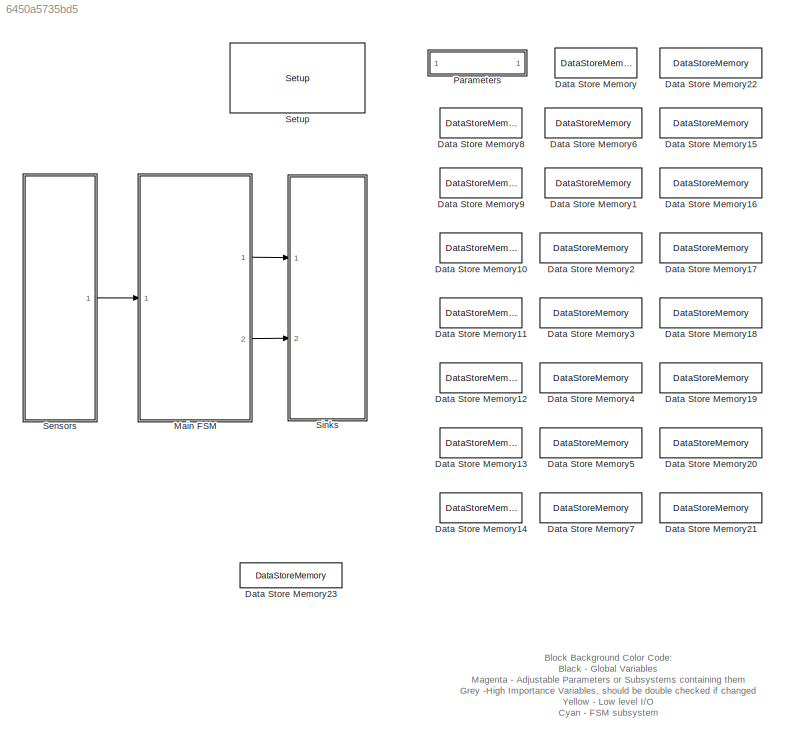
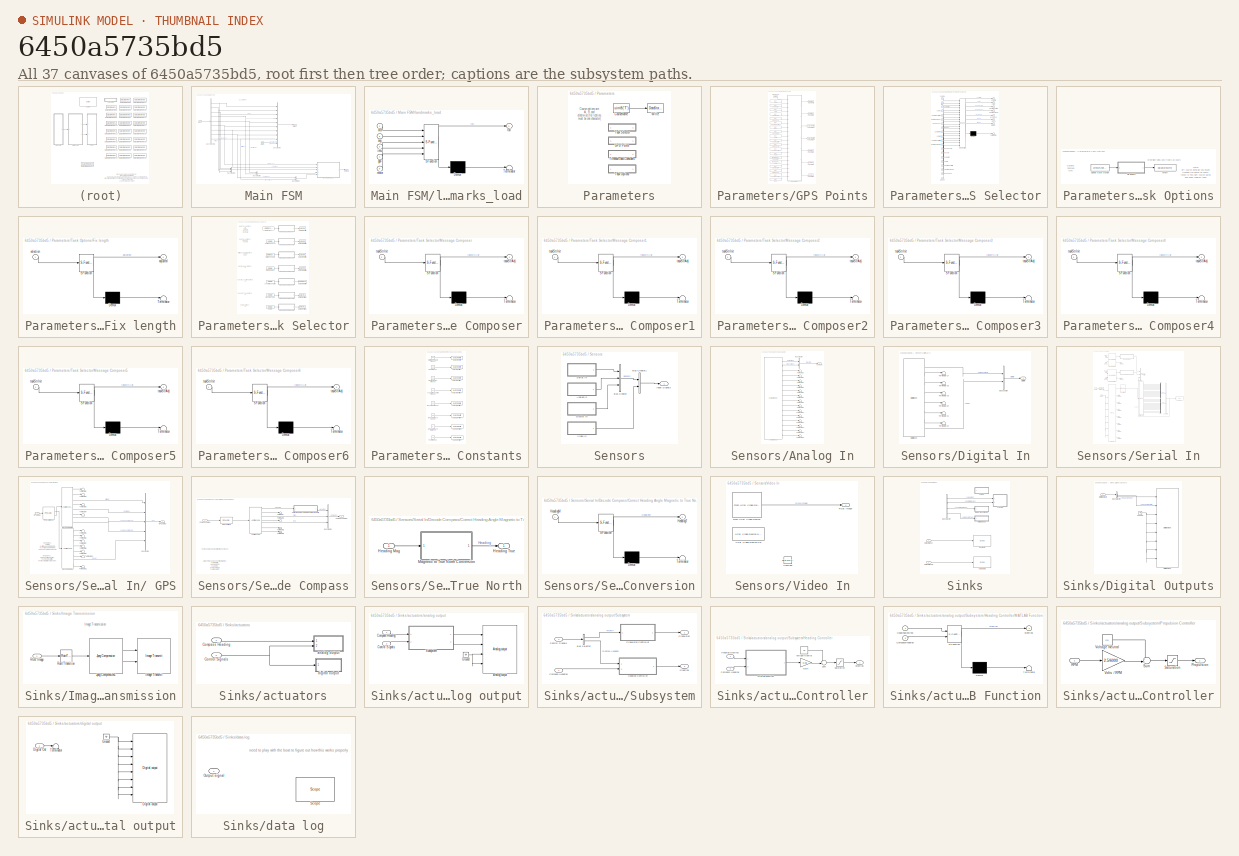
[diagram: thumbnail index - all 37 canvases of the model, root first then tree order]
MODEL slx_6450a5735bd5
KIND model
BLOCK [DataStoreMemory] Data Store Memory
  DataStoreName = Course
  ReadBeforeWriteMsg = warning
  WriteAfterReadMsg = warning
  WriteAfterWriteMsg = warning
BLOCK [DataStoreMemory] Data Store Memory1
  DataStoreName = colorTask
  InitialValue = zeros(1,8)
  ReadBeforeWriteMsg = warning
  WriteAfterReadMsg = warning
  WriteAfterWriteMsg = warning
BLOCK [DataStoreMemory] Data Store Memory10
  DataStoreName = obstNavStartGPS
  InitialValue = zeros(1,2)
  ReadBeforeWriteMsg = warning
  WriteAfterReadMsg = warning
  WriteAfterWriteMsg = warning
BLOCK [DataStoreMemory] Data Store Memory11
  DataStoreName = obstNavEndGPS
  InitialValue = zeros(1,2)
  ReadBeforeWriteMsg = warning
  WriteAfterReadMsg = warning
  WriteAfterWriteMsg = warning
BLOCK [DataStoreMemory] Data Store Memory12
  DataStoreName = acouLocGPS
  InitialValue = zeros(1,2)
  ReadBeforeWriteMsg = warning
  WriteAfterReadMsg = warning
  WriteAfterWriteMsg = warning
BLOCK [DataStoreMemory] Data Store Memory13
  DataStoreName = dockGPS
  InitialValue = zeros(1,2)
  ReadBeforeWriteMsg = warning
  WriteAfterReadMsg = warning
  WriteAfterWriteMsg = warning
BLOCK [DataStoreMemory] Data Store Memory14
  DataStoreName = returnGPS
  InitialValue = zeros(1,2)
  ReadBeforeWriteMsg = warning
  WriteAfterReadMsg = warning
  WriteAfterWriteMsg = warning
BLOCK [DataStoreMemory] Data Store Memory15
  DataStoreName = ssGateTimeout
  ReadBeforeWriteMsg = warning
  WriteAfterReadMsg = warning
  WriteAfterWriteMsg = warning
BLOCK [DataStoreMemory] Data Store Memory16
  DataStoreName = colorTimeout
  ReadBeforeWriteMsg = warning
  WriteAfterReadMsg = warning
  WriteAfterWriteMsg = warning
BLOCK [DataStoreMemory] Data Store Memory17
  DataStoreName = obstNavTimeout
  ReadBeforeWriteMsg = warning
  WriteAfterReadMsg = warning
  WriteAfterWriteMsg = warning
BLOCK [DataStoreMemory] Data Store Memory18
  DataStoreName = acouLocTimeout
  ReadBeforeWriteMsg = warning
  WriteAfterReadMsg = warning
  WriteAfterWriteMsg = warning
BLOCK [DataStoreMemory] Data Store Memory19
  DataStoreName = dockTimeout
  ReadBeforeWriteMsg = warning
  WriteAfterReadMsg = warning
  WriteAfterWriteMsg = warning
BLOCK [DataStoreMemory] Data Store Memory2
  DataStoreName = ssGateTask
  InitialValue = zeros(1,8)
  ReadBeforeWriteMsg = warning
  WriteAfterReadMsg = warning
  WriteAfterWriteMsg = warning
BLOCK [DataStoreMemory] Data Store Memory20
  DataStoreName = GPSapproachSpeed
  ReadBeforeWriteMsg = warning
  WriteAfterReadMsg = warning
  WriteAfterWriteMsg = warning
BLOCK [DataStoreMemory] Data Store Memory21
  DataStoreName = GPSapproachDist
  ReadBeforeWriteMsg = warning
  WriteAfterReadMsg = warning
  WriteAfterWriteMsg = warning
BLOCK [DataStoreMemory] Data Store Memory22
  DataStoreName = testTimeout
  ReadBeforeWriteMsg = warning
  WriteAfterReadMsg = warning
  WriteAfterWriteMsg = warning
BLOCK [DataStoreMemory] Data Store Memory23
  DataStoreName = SpeedGateOption
  InitialValue = zeros(1,8)
  ReadBeforeWriteMsg = warning
  WriteAfterReadMsg = warning
  WriteAfterWriteMsg = warning
BLOCK [DataStoreMemory] Data Store Memory3
  DataStoreName = obstNavTask
  InitialValue = zeros(1,8)
  ReadBeforeWriteMsg = warning
  WriteAfterReadMsg = warning
  WriteAfterWriteMsg = warning
BLOCK [DataStoreMemory] Data Store Memory4
  DataStoreName = acouLocTask
  InitialValue = zeros(1,8)
  ReadBeforeWriteMsg = warning
  WriteAfterReadMsg = warning
  WriteAfterWriteMsg = warning
BLOCK [DataStoreMemory] Data Store Memory5
  DataStoreName = dockTask
  InitialValue = zeros(1,8)
  ReadBeforeWriteMsg = warning
  WriteAfterReadMsg = warning
  WriteAfterWriteMsg = warning
BLOCK [DataStoreMemory] Data Store Memory6
  DataStoreName = mainTask
  InitialValue = zeros(1,8)
  ReadBeforeWriteMsg = warning
  WriteAfterReadMsg = warning
  WriteAfterWriteMsg = warning
BLOCK [DataStoreMemory] Data Store Memory7
  DataStoreName = Return
  InitialValue = zeros(1,8)
  ReadBeforeWriteMsg = warning
  WriteAfterReadMsg = warning
  WriteAfterWriteMsg = warning
BLOCK [DataStoreMemory] Data Store Memory8
  DataStoreName = ssGateGPS
  InitialValue = zeros(1,2)
  ReadBeforeWriteMsg = warning
  WriteAfterReadMsg = warning
  WriteAfterWriteMsg = warning
BLOCK [DataStoreMemory] Data Store Memory9
  DataStoreName = colorGPS
  InitialValue = zeros(1,2)
  ReadBeforeWriteMsg = warning
  WriteAfterReadMsg = warning
  WriteAfterWriteMsg = warning
BLOCK [SubSystem] Main FSM
  Ports = [1, 2]
  RequestExecContextInheritance = off
BLOCK [BusCreator] Main FSM/Bus Creator
  DisplayOption = bar
  Inputs = 10
  Ports = [10, 1]
BLOCK [BusCreator] Main FSM/Bus Creator1
  DisplayOption = bar
  Inputs = 3
  Ports = [3, 1]
BLOCK [BusCreator] Main FSM/Bus Creator2
  DisplayOption = bar
  Inputs = 2
  Ports = [2, 1]
BLOCK [BusCreator] Main FSM/Bus Creator3
  DisplayOption = bar
  Inputs = 2
  Ports = [2, 1]
BLOCK [BusSelector] Main FSM/Bus Selector2
  OutputSignals = Sensors.Serial In.Compass.Heading,Sensors.Serial In.Compass.Pitch,Sensors.Serial In.Compass.Roll,Sensors.Serial In.GPS.latitude,Sensors.Serial In.GPS.longitude,Sensors.Serial In.Landmarks.Distances,Sensors.Serial In.Landmarks.Angles,Sensors.thrusters.port voltage,Sensors.thrusters.stbd voltage
  Ports = [1, 9]
BLOCK [Clock] Main FSM/Clock
BLOCK [Inport] Main FSM/Input
  IconDisplay = Port number
BLOCK [Outport] Main FSM/Output
  IconDisplay = Port number
BLOCK [Outport] Main FSM/Output1
  IconDisplay = Port number
  Port = 2
BLOCK [SubSystem] Main FSM/landmarks_load
  ErrorFcn = Stateflow.Translate.translate
  PermitHierarchicalResolution = ExplicitOnly
  Ports = [5, 1]
  RequestExecContextInheritance = off
  SFBlockType = MATLAB Function
  TreatAsAtomicUnit = on
BLOCK [Demux] Main FSM/landmarks_load/ Demux 
  Outputs = 1
  Ports = [1, 1]
BLOCK [S-Function] Main FSM/landmarks_load/ SFunction 
  EnableBusSupport = on
  FunctionName = sf_sfun
  PortCounts = [5 2]
  Ports = [5, 2]
  Tag = Stateflow S-Function SLAMtester 7
BLOCK [Terminator] Main FSM/landmarks_load/ Terminator 
BLOCK [Inport] Main FSM/landmarks_load/ang
  IconDisplay = Port number
  Port = 2
BLOCK [Inport] Main FSM/landmarks_load/dist
  IconDisplay = Port number
BLOCK [Inport] Main FSM/landmarks_load/gps
  IconDisplay = Port number
  Port = 4
BLOCK [Inport] Main FSM/landmarks_load/imu
  IconDisplay = Port number
  Port = 3
BLOCK [Inport] Main FSM/landmarks_load/motor
  IconDisplay = Port number
  Port = 5
BLOCK [Outport] Main FSM/landmarks_load/roll
  IconDisplay = Port number
BLOCK [SubSystem] Parameters
  Ports = []
  RequestExecContextInheritance = off
BLOCK [Constant] Parameters/CourseName
  Value = uint8('T')
  VectorParams1D = off
BLOCK [SubSystem] Parameters/GPS Points
  Ports = []
  RequestExecContextInheritance = off
BLOCK [Constant] Parameters/GPS Points/Acoustic Location A
  SampleTime = 0.1
  Value = [1,1]
BLOCK [Constant] Parameters/GPS Points/Acoustic Location B
  SampleTime = 0.1
  Value = [1,1]
BLOCK [Constant] Parameters/GPS Points/Acoustic Location T
  SampleTime = 0.1
  Value = [1,1]
BLOCK [Constant] Parameters/GPS Points/Color A
  SampleTime = 0.1
  Value = [1,1]
BLOCK [Constant] Parameters/GPS Points/Color B
  SampleTime = 0.1
  Value = [1,1]
BLOCK [Constant] Parameters/GPS Points/Color T
  SampleTime = 0.1
  Value = [4009.4942 7532.9490]
BLOCK [DataStoreRead] Parameters/GPS Points/Data Store Read
  DataStoreName = Course
  DialogController = Simulink.DDGSource
  Ports = [0, 1]
  SampleTime = 0.1
BLOCK [DataStoreWrite] Parameters/GPS Points/Data Store Write
  DataStoreName = ssGateGPS
  DialogController = Simulink.DDGSource
  Ports = [1]
BLOCK [DataStoreWrite] Parameters/GPS Points/Data Store Write1
  DataStoreName = colorGPS
  Ports = [1]
BLOCK [DataStoreWrite] Parameters/GPS Points/Data Store Write2
  DataStoreName = obstNavStartGPS
  Ports = [1]
BLOCK [DataStoreWrite] Parameters/GPS Points/Data Store Write3
  DataStoreName = obstNavEndGPS
  Ports = [1]
BLOCK [DataStoreWrite] Parameters/GPS Points/Data Store Write4
  DataStoreName = acouLocGPS
  Ports = [1]
BLOCK [DataStoreWrite] Parameters/GPS Points/Data Store Write5
  DataStoreName = dockGPS
  Ports = [1]
BLOCK [DataStoreWrite] Parameters/GPS Points/Data Store Write6
  DataStoreName = returnGPS
  Ports = [1]
BLOCK [Constant] Parameters/GPS Points/Dock A
  SampleTime = 0.1
  Value = [1,1]
BLOCK [Constant] Parameters/GPS Points/Dock B
  SampleTime = 0.1
  Value = [1,1]
BLOCK [Constant] Parameters/GPS Points/Dock T
  SampleTime = 0.1
  Value = [1,1]
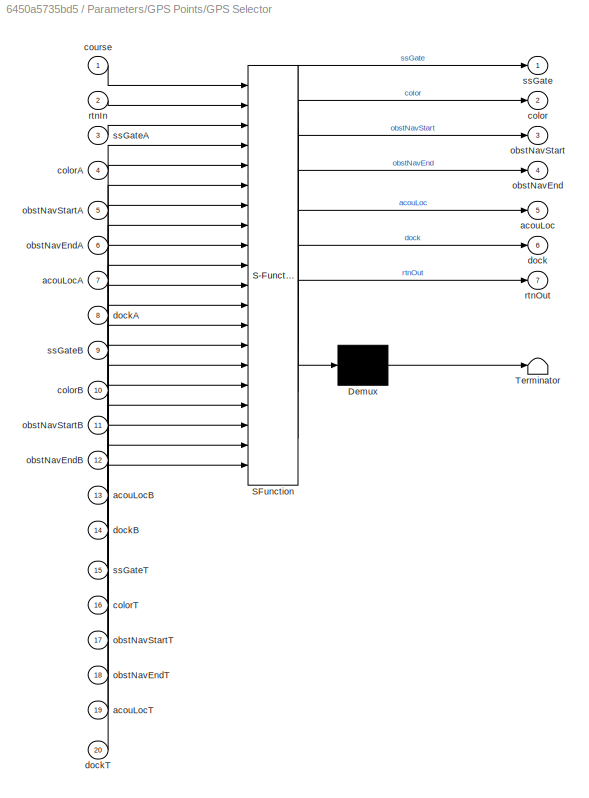
BLOCK [SubSystem] Parameters/GPS Points/GPS Selector
  ErrorFcn = Stateflow.Translate.translate
  PermitHierarchicalResolution = ExplicitOnly
  Ports = [20, 7]
  RequestExecContextInheritance = off
  SFBlockType = MATLAB Function
  TreatAsAtomicUnit = on
BLOCK [Demux] Parameters/GPS Points/GPS Selector/ Demux 
  Outputs = 1
  Ports = [1, 1]
BLOCK [S-Function] Parameters/GPS Points/GPS Selector/ SFunction 
  EnableBusSupport = on
  FunctionName = sf_sfun
  PortCounts = [20 8]
  Ports = [20, 8]
  Tag = Stateflow S-Function SLAMtester 54
BLOCK [Terminator] Parameters/GPS Points/GPS Selector/ Terminator 
BLOCK [Outport] Parameters/GPS Points/GPS Selector/acouLoc
  IconDisplay = Port number
  Port = 5
BLOCK [Inport] Parameters/GPS Points/GPS Selector/acouLocA
  IconDisplay = Port number
  Port = 7
BLOCK [Inport] Parameters/GPS Points/GPS Selector/acouLocB
  IconDisplay = Port number
  Port = 13
BLOCK [Inport] Parameters/GPS Points/GPS Selector/acouLocT
  IconDisplay = Port number
  Port = 19
BLOCK [Outport] Parameters/GPS Points/GPS Selector/color
  IconDisplay = Port number
  Port = 2
BLOCK [Inport] Parameters/GPS Points/GPS Selector/colorA
  IconDisplay = Port number
  Port = 4
BLOCK [Inport] Parameters/GPS Points/GPS Selector/colorB
  IconDisplay = Port number
  Port = 10
BLOCK [Inport] Parameters/GPS Points/GPS Selector/colorT
  IconDisplay = Port number
  Port = 16
BLOCK [Inport] Parameters/GPS Points/GPS Selector/course
  IconDisplay = Port number
BLOCK [Outport] Parameters/GPS Points/GPS Selector/dock
  IconDisplay = Port number
  Port = 6
BLOCK [Inport] Parameters/GPS Points/GPS Selector/dockA
  IconDisplay = Port number
  Port = 8
BLOCK [Inport] Parameters/GPS Points/GPS Selector/dockB
  IconDisplay = Port number
  Port = 14
BLOCK [Inport] Parameters/GPS Points/GPS Selector/dockT
  IconDisplay = Port number
  Port = 20
BLOCK [Outport] Parameters/GPS Points/GPS Selector/obstNavEnd
  IconDisplay = Port number
  Port = 4
BLOCK [Inport] Parameters/GPS Points/GPS Selector/obstNavEndA
  IconDisplay = Port number
  Port = 6
BLOCK [Inport] Parameters/GPS Points/GPS Selector/obstNavEndB
  IconDisplay = Port number
  Port = 12
BLOCK [Inport] Parameters/GPS Points/GPS Selector/obstNavEndT
  IconDisplay = Port number
  Port = 18
BLOCK [Outport] Parameters/GPS Points/GPS Selector/obstNavStart
  IconDisplay = Port number
  Port = 3
BLOCK [Inport] Parameters/GPS Points/GPS Selector/obstNavStartA
  IconDisplay = Port number
  Port = 5
BLOCK [Inport] Parameters/GPS Points/GPS Selector/obstNavStartB
  IconDisplay = Port number
  Port = 11
BLOCK [Inport] Parameters/GPS Points/GPS Selector/obstNavStartT
  IconDisplay = Port number
  Port = 17
BLOCK [Inport] Parameters/GPS Points/GPS Selector/rtnIn
  IconDisplay = Port number
  Port = 2
BLOCK [Outport] Parameters/GPS Points/GPS Selector/rtnOut
  IconDisplay = Port number
  Port = 7
BLOCK [Outport] Parameters/GPS Points/GPS Selector/ssGate
  IconDisplay = Port number
BLOCK [Inport] Parameters/GPS Points/GPS Selector/ssGateA
  IconDisplay = Port number
  Port = 3
BLOCK [Inport] Parameters/GPS Points/GPS Selector/ssGateB
  IconDisplay = Port number
  Port = 9
BLOCK [Inport] Parameters/GPS Points/GPS Selector/ssGateT
  IconDisplay = Port number
  Port = 15
BLOCK [Constant] Parameters/GPS Points/Obst Nav End A
  SampleTime = 0.1
  Value = [1,1]
BLOCK [Constant] Parameters/GPS Points/Obst Nav End B
  SampleTime = 0.1
  Value = [1,1]
BLOCK [Constant] Parameters/GPS Points/Obst Nav End T
  SampleTime = 0.1
  Value = [1,1]
BLOCK [Constant] Parameters/GPS Points/Obst Nav Start A
  SampleTime = 0.1
  Value = [1,1]
BLOCK [Constant] Parameters/GPS Points/Obst Nav Start B
  SampleTime = 0.1
  Value = [1,1]
BLOCK [Constant] Parameters/GPS Points/Obst Nav Start T
  SampleTime = 0.1
  Value = [1,1]
BLOCK [Constant] Parameters/GPS Points/Return
  SampleTime = 0.1
  Value = [1,1]
BLOCK [Constant] Parameters/GPS Points/SpeedGate A
  SampleTime = 0.1
  Value = [1,1]
BLOCK [Constant] Parameters/GPS Points/SpeedGate B
  SampleTime = 0.1
  Value = [1,1]
BLOCK [Constant] Parameters/GPS Points/SpeedGate T
  SampleTime = 0.1
  Value = [4009.5023 7532.9450]
BLOCK [SubSystem] Parameters/Task Options
  Ports = []
  RequestExecContextInheritance = off
BLOCK [SubSystem] Parameters/Task Options/Fix length
  ErrorFcn = Stateflow.Translate.translate
  PermitHierarchicalResolution = ExplicitOnly
  Ports = [1, 1]
  RequestExecContextInheritance = off
  SFBlockType = MATLAB Function
  TreatAsAtomicUnit = on
BLOCK [Demux] Parameters/Task Options/Fix length/ Demux 
  Outputs = 1
  Ports = [1, 1]
BLOCK [S-Function] Parameters/Task Options/Fix length/ SFunction 
  EnableBusSupport = on
  FunctionName = sf_sfun
  PortCounts = [1 2]
  Ports = [1, 2]
  Tag = Stateflow S-Function SLAMtester 80
BLOCK [Terminator] Parameters/Task Options/Fix length/ Terminator 
BLOCK [Outport] Parameters/Task Options/Fix length/adjusted
  IconDisplay = Port number
BLOCK [Inport] Parameters/Task Options/Fix length/selection
  IconDisplay = Port number
BLOCK [Constant] Parameters/Task Options/Speed Gate Option
  Value = uint8('Shotgun')
BLOCK [DataStoreWrite] Parameters/Task Options/Write
  DataStoreName = SpeedGateOption
  Ports = [1]
BLOCK [SubSystem] Parameters/Task Selector
  Ports = []
  RequestExecContextInheritance = off
BLOCK [Constant] Parameters/Task Selector/Acoutstic Location
  SampleTime = 0.1
  Value = uint8('All')
BLOCK [Constant] Parameters/Task Selector/Color Sequence
  SampleTime = 0.1
  Value = uint8('All')
BLOCK [DataStoreWrite] Parameters/Task Selector/Data Store Write
  DataStoreName = mainTask
  Ports = [1]
BLOCK [DataStoreWrite] Parameters/Task Selector/Data Store Write1
  DataStoreName = colorTask
  DialogController = Simulink.DDGSource
  Ports = [1]
BLOCK [DataStoreWrite] Parameters/Task Selector/Data Store Write2
  DataStoreName = ssGateTask
  Ports = [1]
BLOCK [DataStoreWrite] Parameters/Task Selector/Data Store Write3
  DataStoreName = obstNavTask
  Ports = [1]
BLOCK [DataStoreWrite] Parameters/Task Selector/Data Store Write4
  DataStoreName = acouLocTask
  Ports = [1]
BLOCK [DataStoreWrite] Parameters/Task Selector/Data Store Write5
  DataStoreName = dockTask
  Ports = [1]
BLOCK [DataStoreWrite] Parameters/Task Selector/Data Store Write6
  DataStoreName = Return
  Ports = [1]
BLOCK [Constant] Parameters/Task Selector/Docking Task
  SampleTime = 0.1
  Value = uint8('All')
BLOCK [Constant] Parameters/Task Selector/Main Task
  SampleTime = 0.1
  Value = uint8('Dock')
BLOCK [SubSystem] Parameters/Task Selector/Message Composer
  ErrorFcn = Stateflow.Translate.translate
  PermitHierarchicalResolution = ExplicitOnly
  Ports = [1, 1]
  RequestExecContextInheritance = off
  SFBlockType = MATLAB Function
  TreatAsAtomicUnit = on
BLOCK [Demux] Parameters/Task Selector/Message Composer/ Demux 
  Outputs = 1
  Ports = [1, 1]
BLOCK [S-Function] Parameters/Task Selector/Message Composer/ SFunction 
  EnableBusSupport = on
  FunctionName = sf_sfun
  PortCounts = [1 2]
  Ports = [1, 2]
  Tag = Stateflow S-Function SLAMtester 56
BLOCK [Terminator] Parameters/Task Selector/Message Composer/ Terminator 
BLOCK [Outport] Parameters/Task Selector/Message Composer/taskStrAdj
  IconDisplay = Port number
BLOCK [Inport] Parameters/Task Selector/Message Composer/taskStrInit
  IconDisplay = Port number
BLOCK [SubSystem] Parameters/Task Selector/Message Composer1
  ErrorFcn = Stateflow.Translate.translate
  PermitHierarchicalResolution = ExplicitOnly
  Ports = [1, 1]
  RequestExecContextInheritance = off
  SFBlockType = MATLAB Function
  TreatAsAtomicUnit = on
BLOCK [Demux] Parameters/Task Selector/Message Composer1/ Demux 
  Outputs = 1
  Ports = [1, 1]
BLOCK [S-Function] Parameters/Task Selector/Message Composer1/ SFunction 
  EnableBusSupport = on
  FunctionName = sf_sfun
  PortCounts = [1 2]
  Ports = [1, 2]
  Tag = Stateflow S-Function SLAMtester 57
BLOCK [Terminator] Parameters/Task Selector/Message Composer1/ Terminator 
BLOCK [Outport] Parameters/Task Selector/Message Composer1/taskStrAdj
  IconDisplay = Port number
BLOCK [Inport] Parameters/Task Selector/Message Composer1/taskStrInit
  IconDisplay = Port number
BLOCK [SubSystem] Parameters/Task Selector/Message Composer2
  ErrorFcn = Stateflow.Translate.translate
  PermitHierarchicalResolution = ExplicitOnly
  Ports = [1, 1]
  RequestExecContextInheritance = off
  SFBlockType = MATLAB Function
  TreatAsAtomicUnit = on
BLOCK [Demux] Parameters/Task Selector/Message Composer2/ Demux 
  Outputs = 1
  Ports = [1, 1]
BLOCK [S-Function] Parameters/Task Selector/Message Composer2/ SFunction 
  EnableBusSupport = on
  FunctionName = sf_sfun
  PortCounts = [1 2]
  Ports = [1, 2]
  Tag = Stateflow S-Function SLAMtester 58
BLOCK [Terminator] Parameters/Task Selector/Message Composer2/ Terminator 
BLOCK [Outport] Parameters/Task Selector/Message Composer2/taskStrAdj
  IconDisplay = Port number
BLOCK [Inport] Parameters/Task Selector/Message Composer2/taskStrInit
  IconDisplay = Port number
BLOCK [SubSystem] Parameters/Task Selector/Message Composer3
  ErrorFcn = Stateflow.Translate.translate
  PermitHierarchicalResolution = ExplicitOnly
  Ports = [1, 1]
  RequestExecContextInheritance = off
  SFBlockType = MATLAB Function
  TreatAsAtomicUnit = on
BLOCK [Demux] Parameters/Task Selector/Message Composer3/ Demux 
  Outputs = 1
  Ports = [1, 1]
BLOCK [S-Function] Parameters/Task Selector/Message Composer3/ SFunction 
  EnableBusSupport = on
  FunctionName = sf_sfun
  PortCounts = [1 2]
  Ports = [1, 2]
  Tag = Stateflow S-Function SLAMtester 59
BLOCK [Terminator] Parameters/Task Selector/Message Composer3/ Terminator 
BLOCK [Outport] Parameters/Task Selector/Message Composer3/taskStrAdj
  IconDisplay = Port number
BLOCK [Inport] Parameters/Task Selector/Message Composer3/taskStrInit
  IconDisplay = Port number
BLOCK [SubSystem] Parameters/Task Selector/Message Composer4
  ErrorFcn = Stateflow.Translate.translate
  PermitHierarchicalResolution = ExplicitOnly
  Ports = [1, 1]
  RequestExecContextInheritance = off
  SFBlockType = MATLAB Function
  TreatAsAtomicUnit = on
BLOCK [Demux] Parameters/Task Selector/Message Composer4/ Demux 
  Outputs = 1
  Ports = [1, 1]
BLOCK [S-Function] Parameters/Task Selector/Message Composer4/ SFunction 
  EnableBusSupport = on
  FunctionName = sf_sfun
  PortCounts = [1 2]
  Ports = [1, 2]
  Tag = Stateflow S-Function SLAMtester 60
BLOCK [Terminator] Parameters/Task Selector/Message Composer4/ Terminator 
BLOCK [Outport] Parameters/Task Selector/Message Composer4/taskStrAdj
  IconDisplay = Port number
BLOCK [Inport] Parameters/Task Selector/Message Composer4/taskStrInit
  IconDisplay = Port number
BLOCK [SubSystem] Parameters/Task Selector/Message Composer5
  ErrorFcn = Stateflow.Translate.translate
  PermitHierarchicalResolution = ExplicitOnly
  Ports = [1, 1]
  RequestExecContextInheritance = off
  SFBlockType = MATLAB Function
  TreatAsAtomicUnit = on
BLOCK [Demux] Parameters/Task Selector/Message Composer5/ Demux 
  Outputs = 1
  Ports = [1, 1]
BLOCK [S-Function] Parameters/Task Selector/Message Composer5/ SFunction 
  EnableBusSupport = on
  FunctionName = sf_sfun
  PortCounts = [1 2]
  Ports = [1, 2]
  Tag = Stateflow S-Function SLAMtester 61
BLOCK [Terminator] Parameters/Task Selector/Message Composer5/ Terminator 
BLOCK [Outport] Parameters/Task Selector/Message Composer5/taskStrAdj
  IconDisplay = Port number
BLOCK [Inport] Parameters/Task Selector/Message Composer5/taskStrInit
  IconDisplay = Port number
BLOCK [SubSystem] Parameters/Task Selector/Message Composer6
  ErrorFcn = Stateflow.Translate.translate
  PermitHierarchicalResolution = ExplicitOnly
  Ports = [1, 1]
  RequestExecContextInheritance = off
  SFBlockType = MATLAB Function
  TreatAsAtomicUnit = on
BLOCK [Demux] Parameters/Task Selector/Message Composer6/ Demux 
  Outputs = 1
  Ports = [1, 1]
BLOCK [S-Function] Parameters/Task Selector/Message Composer6/ SFunction 
  EnableBusSupport = on
  FunctionName = sf_sfun
  PortCounts = [1 2]
  Ports = [1, 2]
  Tag = Stateflow S-Function SLAMtester 62
BLOCK [Terminator] Parameters/Task Selector/Message Composer6/ Terminator 
BLOCK [Outport] Parameters/Task Selector/Message Composer6/taskStrAdj
  IconDisplay = Port number
BLOCK [Inport] Parameters/Task Selector/Message Composer6/taskStrInit
  IconDisplay = Port number
BLOCK [Constant] Parameters/Task Selector/Obstacle Nav
  SampleTime = 0.1
  Value = uint8('All')
BLOCK [Constant] Parameters/Task Selector/Return
  SampleTime = 0.1
  Value = uint8('All')
BLOCK [Constant] Parameters/Task Selector/Start Speed Gate
  SampleTime = 0.1
  Value = uint8('Color')
BLOCK [SubSystem] Parameters/Timeouts and Constants
  Ports = []
  RequestExecContextInheritance = off
BLOCK [Constant] Parameters/Timeouts and Constants/Acoustic Location Timeout
  SampleTime = 0.1
  Value = 30
BLOCK [Constant] Parameters/Timeouts and Constants/Color Timeout
  SampleTime = 0.1
  Value = 30
BLOCK [DataStoreWrite] Parameters/Timeouts and Constants/Data Store Write
  DataStoreName = ssGateTimeout
  Ports = [1]
BLOCK [DataStoreWrite] Parameters/Timeouts and Constants/Data Store Write1
  DataStoreName = colorTimeout
  Ports = [1]
BLOCK [DataStoreWrite] Parameters/Timeouts and Constants/Data Store Write2
  DataStoreName = obstNavTimeout
  Ports = [1]
BLOCK [DataStoreWrite] Parameters/Timeouts and Constants/Data Store Write3
  DataStoreName = acouLocTimeout
  Ports = [1]
BLOCK [DataStoreWrite] Parameters/Timeouts and Constants/Data Store Write4
  DataStoreName = dockTimeout
  Ports = [1]
BLOCK [DataStoreWrite] Parameters/Timeouts and Constants/Data Store Write5
  DataStoreName = GPSapproachSpeed
  Ports = [1]
BLOCK [DataStoreWrite] Parameters/Timeouts and Constants/Data Store Write6
  DataStoreName = GPSapproachDist
  Ports = [1]
BLOCK [DataStoreWrite] Parameters/Timeouts and Constants/Data Store Write7
  DataStoreName = testTimeout
  Ports = [1]
BLOCK [Constant] Parameters/Timeouts and Constants/Docking Timeout
  SampleTime = 0.1
  Value = 30
BLOCK [Constant] Parameters/Timeouts and Constants/GPS Approach Distance
  SampleTime = 0.1
  Value = 3
BLOCK [Constant] Parameters/Timeouts and Constants/GPS Approach Speed
  SampleTime = 0.1
  Value = 4000
BLOCK [Constant] Parameters/Timeouts and Constants/Obstacle Nav Timeout
  SampleTime = 0.1
  Value = 30
BLOCK [Constant] Parameters/Timeouts and Constants/Start Speed Gate Timeout
  SampleTime = 0.1
  Value = 120
BLOCK [Constant] Parameters/Timeouts and Constants/Test Timeout
  SampleTime = 0.1
  Value = 15
BLOCK [DataStoreWrite] Parameters/Write
  DataStoreName = Course
  Ports = [1]
BLOCK [SubSystem] Sensors
  Ports = [0, 1]
  RequestExecContextInheritance = off
BLOCK [SubSystem] Sensors/Analog In
  Ports = [0, 1]
  RequestExecContextInheritance = off
BLOCK [Reference] Sensors/Analog In/Analog input  REF=speedgoatlib_IO102/Analog input
  Ports = [0, 16]
  SourceBlock = speedgoatlib_IO102/Analog input
  SourceType = ad_IO102
  adCoupling = 1
  channels = [1,2,3,4,5,6,7,8,9,10,11,12,13,14,15,16]
  high_voltage = off
  id = 1
  pciSlot = -1
  range = 2
  ts = 0.1
BLOCK [BusCreator] Sensors/Analog In/Bus Creator
  DisplayOption = bar
  Inputs = 2
  Ports = [2, 1]
BLOCK [Terminator] Sensors/Analog In/Terminator10
BLOCK [Terminator] Sensors/Analog In/Terminator11
BLOCK [Terminator] Sensors/Analog In/Terminator12
BLOCK [Terminator] Sensors/Analog In/Terminator13
BLOCK [Terminator] Sensors/Analog In/Terminator14
BLOCK [Terminator] Sensors/Analog In/Terminator15
BLOCK [Terminator] Sensors/Analog In/Terminator2
BLOCK [Terminator] Sensors/Analog In/Terminator3
BLOCK [Terminator] Sensors/Analog In/Terminator4
BLOCK [Terminator] Sensors/Analog In/Terminator5
BLOCK [Terminator] Sensors/Analog In/Terminator6
BLOCK [Terminator] Sensors/Analog In/Terminator7
BLOCK [Terminator] Sensors/Analog In/Terminator8
BLOCK [Terminator] Sensors/Analog In/Terminator9
BLOCK [Outport] Sensors/Analog In/analog in
  IconDisplay = Port number
BLOCK [BusCreator] Sensors/Bus Creator
  DisplayOption = bar
  Inputs = 3
  Ports = [3, 1]
BLOCK [BusCreator] Sensors/Bus Creator1
  DisplayOption = bar
  Inputs = 2
  Ports = [2, 1]
BLOCK [SubSystem] Sensors/Digital In
  Ports = [0, 1]
  RequestExecContextInheritance = off
BLOCK [BusCreator] Sensors/Digital In/Bus Creator
  DisplayOption = bar
  Inputs = 2
  Ports = [2, 1]
BLOCK [Outport] Sensors/Digital In/Digital In
  IconDisplay = Port number
BLOCK [Reference] Sensors/Digital In/Digital input  REF=speedgoatlib_IO102/Digital input
  Ports = [0, 8]
  SourceBlock = speedgoatlib_IO102/Digital input
  SourceType = di_IO102
  channels = [1,2,3,4,5,6,7,8]
  id = 1
  pciSlot = -1
  ts = 0.1
BLOCK [Terminator] Sensors/Digital In/Terminator17
BLOCK [Terminator] Sensors/Digital In/Terminator18
BLOCK [Terminator] Sensors/Digital In/Terminator19
BLOCK [Terminator] Sensors/Digital In/Terminator20
BLOCK [Terminator] Sensors/Digital In/Terminator21
BLOCK [Terminator] Sensors/Digital In/Terminator22
BLOCK [Outport] Sensors/Input Signals
  IconDisplay = Port number
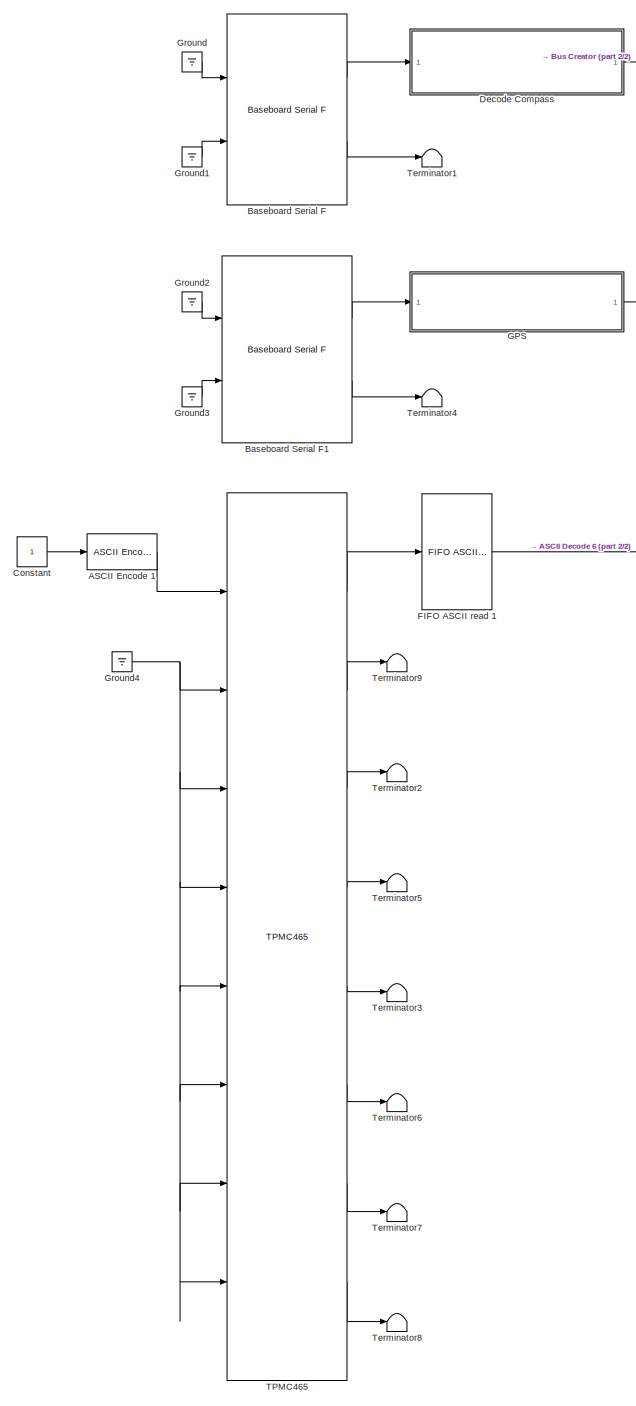
[diagram: Sensors/Serial In - part 1/2, left side, full height]
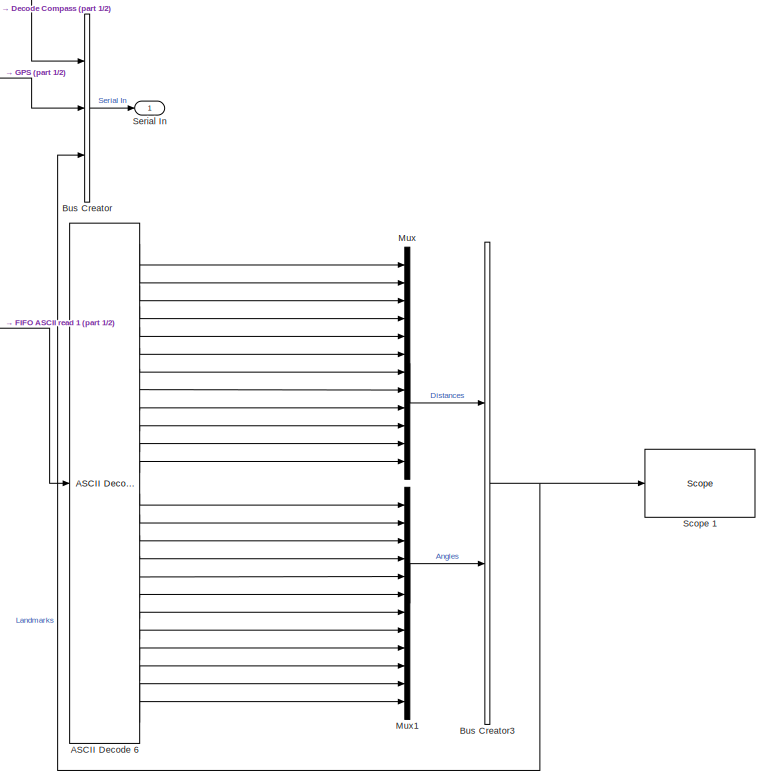
[diagram: Sensors/Serial In - part 2/2, middle right region]
BLOCK [SubSystem] Sensors/Serial In
  Ports = [0, 1]
  RequestExecContextInheritance = off
BLOCK [SubSystem] Sensors/Serial In/ GPS
  Ports = [1, 1]
  RequestExecContextInheritance = off
BLOCK [BusCreator] Sensors/Serial In/ GPS/Bus Creator
  DisplayOption = bar
  Inputs = 5
  Ports = [5, 1]
BLOCK [Reference] Sensors/Serial In/ GPS/Decode GPGGA  REF=xpcseriallib/ASCII Decode 
  Ports = [1, 8]
  SourceBlock = xpcseriallib/ASCII Decode
  SourceType = ASCII Decode
  format = $GPGGA,%d,%f,%c%f,%c%f,%f,%f
  nvars = 8
  vartypes = { }
BLOCK [Reference] Sensors/Serial In/ GPS/Decode GPRMC  REF=xpcseriallib/ASCII Decode 
  Ports = [1, 8]
  SourceBlock = xpcseriallib/ASCII Decode
  SourceType = ASCII Decode
  format = $GPRMC,%f,%c%f,%c%f,%c%f,%f
  nvars = 8
  vartypes = { }
BLOCK [Reference] Sensors/Serial In/ GPS/FIFO ASCII read 1  REF=xpcseriallib/FIFO ASCII read 
  Ports = [1, 2]
  SourceBlock = xpcseriallib/FIFO ASCII read
  SourceType = Asynchronous FIFO Block: reader
  enable = off
  header = {'$GPGGA','$GPRMC'}
  hold = Zero output if no new data
  maxsize = 1024
  outputtype = 8 bit uint null terminated
  sampletime = -1
  term = [13 10]
BLOCK [Inport] Sensors/Serial In/ GPS/GPS NMEA
  IconDisplay = Port number
BLOCK [Outport] Sensors/Serial In/ GPS/GPS data (5)
  IconDisplay = Port number
BLOCK [Terminator] Sensors/Serial In/ GPS/Terminator1
BLOCK [Terminator] Sensors/Serial In/ GPS/Terminator10
BLOCK [Terminator] Sensors/Serial In/ GPS/Terminator11
BLOCK [Terminator] Sensors/Serial In/ GPS/Terminator2
BLOCK [Terminator] Sensors/Serial In/ GPS/Terminator3
BLOCK [Terminator] Sensors/Serial In/ GPS/Terminator4
BLOCK [Terminator] Sensors/Serial In/ GPS/Terminator5
BLOCK [Terminator] Sensors/Serial In/ GPS/Terminator6
BLOCK [Terminator] Sensors/Serial In/ GPS/Terminator7
BLOCK [Terminator] Sensors/Serial In/ GPS/Terminator8
BLOCK [Terminator] Sensors/Serial In/ GPS/Terminator9
BLOCK [Reference] Sensors/Serial In/ASCII Decode 6  REF=xpcseriallib/ASCII Decode 
  Ports = [1, 24]
  SourceBlock = xpcseriallib/ASCII Decode
  SourceType = ASCII Decode
  format = A:%f B:%f C:%f D:%f E:%f F:%f G:%f H:%f I:%f J:%f k:%f L:%f M:%d N:%d O:%d P:%d Q:%d R:%d S:%d T:%d U:%d V:%d W:%d X:%d
  nvars = 24
  vartypes = {}
BLOCK [Reference] Sensors/Serial In/ASCII Encode 1  REF=xpcseriallib/ASCII Encode 
  Ports = [1, 1]
  SourceBlock = xpcseriallib/ASCII Encode
  SourceType = ASCII Encode
  format = SGTask:%d\r\n
  maxlength = 128
  nvars = 1
  vartypes = { 'double' }
BLOCK [Reference] Sensors/Serial In/Baseboard Serial F  REF=xpcseriallib/Mainboard/Baseboard
Serial F
  Ports = [2, 2]
  SourceBlock = xpcseriallib/Mainboard/Baseboard\nSerial F
  SourceType = Baseboard RS232 Send Receive
  automode1 = on
  automode2 = on
  baud1 = 19200
  baud2 = 115200
  config = Com1/Com3
  fifomode1 = 64 deep
  fifomode2 = 64 deep
  group = Basic Setup
  irqnum = 4
  ndata1 = 8
  ndata2 = 8
  nstop1 = 1
  nstop2 = 1
  parity1 = None
  parity2 = None
  port = 2
  rcvfifosize1 = 1024
  rcvfifosize2 = 1024
  rlevel1 = half full
  rlevel2 = half full
  saddr1 = 0x3f8
  saddr2 = 0x3e8
  xmtdatatype1 = 8 bit uint null terminated
  xmtdatatype2 = 8 bit uint null terminated
  xmtfifosize1 = 1024
  xmtfifosize2 = 1024
BLOCK [Reference] Sensors/Serial In/Baseboard Serial F1  REF=xpcseriallib/Mainboard/Baseboard
Serial F
  Ports = [2, 2]
  SourceBlock = xpcseriallib/Mainboard/Baseboard\nSerial F
  SourceType = Baseboard RS232 Send Receive
  automode1 = on
  automode2 = on
  baud1 = 19200
  baud2 = 115200
  config = Com2/Com4
  fifomode1 = 64 deep
  fifomode2 = 64 deep
  group = Basic Setup
  irqnum = 4
  ndata1 = 8
  ndata2 = 8
  nstop1 = 1
  nstop2 = 1
  parity1 = None
  parity2 = None
  port = 2
  rcvfifosize1 = 1024
  rcvfifosize2 = 1024
  rlevel1 = half full
  rlevel2 = half full
  saddr1 = 0x3f8
  saddr2 = 0x3e8
  xmtdatatype1 = 8 bit uint null terminated
  xmtdatatype2 = 8 bit uint null terminated
  xmtfifosize1 = 1024
  xmtfifosize2 = 1024
BLOCK [BusCreator] Sensors/Serial In/Bus Creator
  DisplayOption = bar
  Inputs = 3
  Ports = [3, 1]
BLOCK [BusCreator] Sensors/Serial In/Bus Creator3
  DisplayOption = bar
  Inputs = 2
  Ports = [2, 1]
BLOCK [Constant] Sensors/Serial In/Constant
  SampleTime = 0.1
BLOCK [SubSystem] Sensors/Serial In/Decode Compass
  Ports = [1, 1]
  RequestExecContextInheritance = off
BLOCK [Reference] Sensors/Serial In/Decode Compass/ASCII Decode   REF=xpcseriallib/ASCII Decode 
  Ports = [1, 7]
  SourceBlock = xpcseriallib/ASCII Decode
  SourceType = ASCII Decode
  format = $PTNTHPR,%f,%c%f,%c%f,%c
  nvars = 7
  vartypes = { }
BLOCK [BusCreator] Sensors/Serial In/Decode Compass/Bus Creator
  DisplayOption = bar
  Inputs = 3
  Ports = [3, 1]
BLOCK [Inport] Sensors/Serial In/Decode Compass/Compass NMEA
  IconDisplay = Port number
BLOCK [Outport] Sensors/Serial In/Decode Compass/Compass data (3)
  IconDisplay = Port number
BLOCK [SubSystem] Sensors/Serial In/Decode Compass/Correct Heading Angle Magnetic to True North
  Ports = [1, 1]
  RequestExecContextInheritance = off
BLOCK [Inport] Sensors/Serial In/Decode Compass/Correct Heading Angle Magnetic to True North/Heading Mag
  IconDisplay = Port number
BLOCK [Outport] Sensors/Serial In/Decode Compass/Correct Heading Angle Magnetic to True North/Heading True
  IconDisplay = Port number
BLOCK [SubSystem] Sensors/Serial In/Decode Compass/Correct Heading Angle Magnetic to True North/Magnetic to True North Conversion
  ErrorFcn = Stateflow.Translate.translate
  PermitHierarchicalResolution = ExplicitOnly
  Ports = [1, 1]
  RequestExecContextInheritance = off
  SFBlockType = MATLAB Function
  TreatAsAtomicUnit = on
BLOCK [Demux] Sensors/Serial In/Decode Compass/Correct Heading Angle Magnetic to True North/Magnetic to True North Conversion/ Demux 
  Outputs = 1
  Ports = [1, 1]
BLOCK [S-Function] Sensors/Serial In/Decode Compass/Correct Heading Angle Magnetic to True North/Magnetic to True North Conversion/ SFunction 
  EnableBusSupport = on
  FunctionName = sf_sfun
  PortCounts = [1 2]
  Ports = [1, 2]
  Tag = Stateflow S-Function SLAMtester 44
BLOCK [Terminator] Sensors/Serial In/Decode Compass/Correct Heading Angle Magnetic to True North/Magnetic to True North Conversion/ Terminator 
BLOCK [Inport] Sensors/Serial In/Decode Compass/Correct Heading Angle Magnetic to True North/Magnetic to True North Conversion/HeadingM
  IconDisplay = Port number
BLOCK [Outport] Sensors/Serial In/Decode Compass/Correct Heading Angle Magnetic to True North/Magnetic to True North Conversion/HeadingT
  IconDisplay = Port number
BLOCK [Reference] Sensors/Serial In/Decode Compass/FIFO ASCII read   REF=xpcseriallib/FIFO ASCII read 
  Ports = [1, 1]
  SourceBlock = xpcseriallib/FIFO ASCII read
  SourceType = Asynchronous FIFO Block: reader
  enable = off
  header = {'$PTNTHPR'}
  hold = Zero output if no new data
  maxsize = 64
  outputtype = 8 bit uint null terminated
  sampletime = -1
  term = [13 10]
BLOCK [Terminator] Sensors/Serial In/Decode Compass/Terminator
BLOCK [Terminator] Sensors/Serial In/Decode Compass/Terminator1
BLOCK [Terminator] Sensors/Serial In/Decode Compass/Terminator2
BLOCK [Terminator] Sensors/Serial In/Decode Compass/Terminator3
BLOCK [Reference] Sensors/Serial In/FIFO ASCII read 1  REF=xpcseriallib/FIFO ASCII read 
  Ports = [1, 1]
  SourceBlock = xpcseriallib/FIFO ASCII read
  SourceType = Asynchronous FIFO Block: reader
  enable = off
  header = {'A:'}
  hold = Zero output if no new data
  maxsize = 1024
  outputtype = 8 bit uint null terminated
  sampletime = 0.1
  term = [13 10]
BLOCK [Ground] Sensors/Serial In/Ground
BLOCK [Ground] Sensors/Serial In/Ground1
BLOCK [Ground] Sensors/Serial In/Ground2
BLOCK [Ground] Sensors/Serial In/Ground3
BLOCK [Ground] Sensors/Serial In/Ground4
BLOCK [Mux] Sensors/Serial In/Mux
  DisplayOption = bar
  Inputs = 12
  Ports = [12, 1]
BLOCK [Mux] Sensors/Serial In/Mux1
  DisplayOption = bar
  Inputs = 12
  Ports = [12, 1]
BLOCK [Reference] Sensors/Serial In/Scope 1  REF=slrtlib/Displays and
Logging/Scope 
  Ports = [1]
  SourceBlock = slrtlib/Displays and\nLogging/Scope
  SourceType = xpcscopeblock
  autorestart = off
  autostart = on
  dynamicfilemode = off
  filename = data.dat
  formatstr = '%15.6f'
  grid = on
  interleave = 1
  maxwritefilesize = 512*1024^2
  mode = Lazy
  noprepostsamples = 0
  nosamples = 24
  scopeno = 1
  scopetype = Host
  triggerlevel = 0.0
  triggermode = FreeRun
  triggersample = 0
  triggerscope = 1
  triggersignal = 1
  triggerslope = Either
  trigsignalfromport = off
  viewmode = Graphical redraw
  writesize = 512
  ylimits = [0,0]
BLOCK [Outport] Sensors/Serial In/Serial In
  IconDisplay = Port number
BLOCK [Reference] Sensors/Serial In/TPMC465  REF=speedgoatlib/IO504/TPMC465  (lib defined in mdl_2b10c7445f81, mdl_649b3eec89a6, +4 more)
  Ports = [8, 8]
  SourceBlock = speedgoatlib/IO504/TPMC465
  SourceType = sendreceive_IO504
  baud1 = 115200
  baud2 = 115200
  baud3 = 115200
  baud4 = 115200
  baud5 = 115200
  baud6 = 115200
  baud7 = 115200
  baud8 = 115200
  bauddivisor1 = 1
  bauddivisor2 = 1
  bauddivisor3 = 1
  bauddivisor4 = 1
  bauddivisor5 = 1
  bauddivisor6 = 1
  bauddivisor7 = 1
  bauddivisor8 = 1
  group = Basic Setup
  hwmode1 = none
  hwmode2 = none
  hwmode3 = none
  hwmode4 = none
  hwmode5 = none
  hwmode6 = none
  hwmode7 = none
  hwmode8 = none
  irqnum = 9
  ndata1 = 7
  ndata2 = 8
  ndata3 = 8
  ndata4 = 8
  ndata5 = 8
  ndata6 = 8
  ndata7 = 8
  ndata8 = 8
  nstop1 = 1
  nstop2 = 1
  nstop3 = 1
  nstop4 = 1
  nstop5 = 1
  nstop6 = 1
  nstop7 = 1
  nstop8 = 1
  parity1 = Even
  parity2 = None
  parity3 = None
  parity4 = None
  parity5 = None
  parity6 = None
  parity7 = None
  parity8 = None
  port = 1
  prescale1 = off
  prescale2 = off
  prescale3 = off
  prescale4 = off
  prescale5 = off
  prescale6 = off
  prescale7 = off
  prescale8 = off
  rcvfifosize1 = 1024
  rcvfifosize2 = 1024
  rcvfifosize3 = 1024
  rcvfifosize4 = 1024
  rcvfifosize5 = 1024
  rcvfifosize6 = 1024
  rcvfifosize7 = 1024
  rcvfifosize8 = 1024
  rlevel1 = quarter full (16)
  rlevel2 = half full (32)
  rlevel3 = half full (32)
  rlevel4 = half full (32)
  rlevel5 = 1
  rlevel6 = 1
  rlevel7 = 1
  rlevel8 = 1
  rs485auto1 = off
  rs485auto2 = off
  rs485auto3 = off
  rs485auto4 = off
  rs485auto5 = off
  rs485auto6 = off
  rs485auto7 = off
  rs485auto8 = off
  rs485delay1 = 0
  rs485delay2 = 0
  rs485delay3 = 0
  rs485delay4 = 0
  rs485delay5 = 0
  rs485delay6 = 0
  rs485delay7 = 0
  rs485delay8 = 0
  sampling1 = 16x (standard)
  sampling2 = 16x (standard)
  sampling3 = 16x (standard)
  sampling4 = 16x (standard)
  sampling5 = 16x (standard)
  sampling6 = 16x (standard)
  sampling7 = 16x (standard)
  sampling8 = 16x (standard)
  slot = -1
  standard1 = on
  standard2 = on
  standard3 = on
  standard4 = on
  standard5 = on
  standard6 = on
  standard7 = on
  standard8 = on
  swmode1 = none
  swmode2 = none
  swmode3 = none
  swmode4 = none
  swmode5 = none
  swmode6 = none
  swmode7 = none
  swmode8 = none
  transceiver1 = RS232 (max 921.6kb/s)
  transceiver2 = RS232 (max 921.6kb/s)
  transceiver3 = RS232 (max 921.6kb/s)
  transceiver4 = RS232 (max 921.6kb/s)
  transceiver5 = RS232 (max 921.6kb/s)
  transceiver6 = RS232 (max 921.6kb/s)
  transceiver7 = RS232 (max 921.6kb/s)
  transceiver8 = RS232 (max 921.6kb/s)
  xmtdatatype1 = 8 bit uint null terminated
  xmtdatatype2 = 8 bit uint null terminated
  xmtdatatype3 = 8 bit uint null terminated
  xmtdatatype4 = 8 bit uint null terminated
  xmtdatatype5 = 8 bit uint null terminated
  xmtdatatype6 = 8 bit uint null terminated
  xmtdatatype7 = 8 bit uint null terminated
  xmtdatatype8 = 8 bit uint null terminated
  xmtfifosize1 = 1024
  xmtfifosize2 = 1024
  xmtfifosize3 = 1024
  xmtfifosize4 = 1024
  xmtfifosize5 = 1024
  xmtfifosize6 = 1024
  xmtfifosize7 = 1024
  xmtfifosize8 = 1024
  xoffchar1 = 19
  xoffchar2 = 19
  xoffchar3 = 19
  xoffchar4 = 19
  xoffchar5 = 19
  xoffchar6 = 19
  xoffchar7 = 19
  xoffchar8 = 19
  xonchar1 = 17
  xonchar2 = 17
  xonchar3 = 17
  xonchar4 = 17
  xonchar5 = 17
  xonchar6 = 17
  xonchar7 = 17
  xonchar8 = 17
BLOCK [Terminator] Sensors/Serial In/Terminator1
BLOCK [Terminator] Sensors/Serial In/Terminator2
BLOCK [Terminator] Sensors/Serial In/Terminator3
BLOCK [Terminator] Sensors/Serial In/Terminator4
BLOCK [Terminator] Sensors/Serial In/Terminator5
BLOCK [Terminator] Sensors/Serial In/Terminator6
BLOCK [Terminator] Sensors/Serial In/Terminator7
BLOCK [Terminator] Sensors/Serial In/Terminator8
BLOCK [Terminator] Sensors/Serial In/Terminator9
BLOCK [SubSystem] Sensors/Video In
  Ports = [0, 1]
  RequestExecContextInheritance = off
BLOCK [Constant] Sensors/Video In/Constant
  Commented = on
  Value = uint8(255*ones(480,640,3))
BLOCK [Reference] Sensors/Video In/From USB Video Device  REF=xpcvideousblib/From USB Video Device
  Ports = [0, 1]
  SourceBlock = xpcvideousblib/From USB Video Device
  SourceType = xpcvideousb
  cfmt = RGB24 (8:8:8)
  ffmt = Uncompressed
  fint = 1/10
  iheight = 480
  isig = One multidimensional signal
  iwidth = 640
  paddr = -1
  sconf = <Select a configuration>
  status = off
  trigger = off
  updateBlock = 1
BLOCK [Outport] Sensors/Video In/RGB image
  IconDisplay = Port number
BLOCK [Reference] Sensors/Video In/USB Video Device List  REF=xpcvideousblib/USB Video Device List
  Ports = []
  ShowInLibBrowser = 0
  SourceBlock = xpcvideousblib/USB Video Device List
  SourceType = xpcusbsearch
  UserDataPersistent = on
  usb_search = on
BLOCK [Reference] Setup  REF=speedgoatlib_IO102/Setup
  Ports = []
  SourceBlock = speedgoatlib_IO102/Setup
  SourceType = setup_IO102
  adChannel = 16
  adChannelMode = Multiple-channel (enter number of channels below)
  adCoupling = Differential
  cal = off
  daChannel = [1,2,3,4]
  daInitValue = [0]
  daReset = [1]
  diChannel = [1,2,3,4,5,6,7,8]
  doChannel = [1,2,3,4,5,6,7,8]
  doInitValue = [0]
  doReset = [1]
  group = Analog input setup
  id = 1
  pciSlot = -1
  range = +-5V
BLOCK [SubSystem] Sinks
  Ports = [2]
  RequestExecContextInheritance = off
BLOCK [BusSelector] Sinks/Bus Selector
  Commented = on
  OutputSignals = Sensors.Serial In.Compass.Heading,Outputs.Control Signals,Outputs.Annotated Image,Outputs.Control Signals.Arduino Signals
  Ports = [1, 4]
BLOCK [SubSystem] Sinks/Digital Outputs
  Commented = on
  Ports = [1]
  RequestExecContextInheritance = off
BLOCK [BusSelector] Sinks/Digital Outputs/Bus Selector
  OutputSignals = Ready to Read,Due Sample Start
  Ports = [1, 2]
BLOCK [Inport] Sinks/Digital Outputs/Digital Outputs
  IconDisplay = Port number
BLOCK [Reference] Sinks/Digital Outputs/Digital output  REF=speedgoatlib_IO102/Digital output
  Ports = [8]
  SourceBlock = speedgoatlib_IO102/Digital output
  SourceType = do_IO102
  channels = [1,2,3,4,5,6,7,8]
  id = 1
  pciSlot = -1
  ts = 0.1
BLOCK [Ground] Sinks/Digital Outputs/Ground
BLOCK [SubSystem] Sinks/Image Transmission
  Commented = on
  Ports = [1]
  RequestExecContextInheritance = off
BLOCK [Reference] Sinks/Image Transmission/Image Transmit  REF=xpcvideoutillib/Image Transmit
  Ports = [2]
  SourceBlock = xpcvideoutillib/Image Transmit
  SourceType = xpcimagetransmit
  ipAddress = 255.255.255.255
  ipPort = 25000
  localPort = -1
  maxpacket = 40*1024
  sampletime = -1
  vblLen = on
BLOCK [Reference] Sinks/Image Transmission/Jpeg Compression1  REF=xpcvideoutillib/Jpeg Compression
  Ports = [1, 2]
  SourceBlock = xpcvideoutillib/Jpeg Compression
  SourceType = CJPEG
  cspace = RGB
  isig = One multidimensional signal
  length = on
  maxsize = 640*480
  quality = 20
BLOCK [Inport] Sinks/Image Transmission/RGB Image
  IconDisplay = Port number
BLOCK [RateTransition] Sinks/Image Transmission/Rate Transition
  OutPortSampleTime = 1
BLOCK [Inport] Sinks/Output Signal
  IconDisplay = Port number
BLOCK [Inport] Sinks/Output Signal1
  IconDisplay = Port number
  Port = 2
BLOCK [SubSystem] Sinks/actuators
  Commented = on
  Ports = [2]
  RequestExecContextInheritance = off
BLOCK [Inport] Sinks/actuators/Compass Heading
  IconDisplay = Port number
BLOCK [Inport] Sinks/actuators/Control Signals
  IconDisplay = Port number
  Port = 2
BLOCK [SubSystem] Sinks/actuators/analog output
  Ports = [2]
  RequestExecContextInheritance = off
BLOCK [Reference] Sinks/actuators/analog output/Analog output  REF=speedgoatlib_IO102/Analog output
  Ports = [4]
  SourceBlock = speedgoatlib_IO102/Analog output
  SourceType = da_IO102
  channels = [1,2,3,4]
  id = 1
  pciSlot = -1
  range = 2
  ts = 0.1
BLOCK [Inport] Sinks/actuators/analog output/Compass Heading
  IconDisplay = Port number
BLOCK [Inport] Sinks/actuators/analog output/Control Signals
  IconDisplay = Port number
  Port = 2
BLOCK [Ground] Sinks/actuators/analog output/Ground
BLOCK [SubSystem] Sinks/actuators/analog output/Subsystem
  Ports = [2, 2]
  RequestExecContextInheritance = off
BLOCK [BusSelector] Sinks/actuators/analog output/Subsystem/Bus Selector
  OutputSignals = RPM,Desired Heading
  Ports = [1, 2]
BLOCK [Inport] Sinks/actuators/analog output/Subsystem/Compass Heading
  IconDisplay = Port number
BLOCK [Inport] Sinks/actuators/analog output/Subsystem/Control Signals
  IconDisplay = Port number
  Port = 2
BLOCK [SubSystem] Sinks/actuators/analog output/Subsystem/Heading Controller
  Ports = [2, 1]
  RequestExecContextInheritance = off
BLOCK [Inport] Sinks/actuators/analog output/Subsystem/Heading Controller/Compass Heading
  IconDisplay = Port number
  Port = 2
BLOCK [Gain] Sinks/actuators/analog output/Subsystem/Heading Controller/Gain
  Gain = -0.05
  OutDataTypeStr = Inherit: Inherit via internal rule
  ParamDataTypeStr = Inherit: Inherit via internal rule
  SaturateOnIntegerOverflow = off
BLOCK [Inport] Sinks/actuators/analog output/Subsystem/Heading Controller/Heading Desired
  IconDisplay = Port number
BLOCK [SubSystem] Sinks/actuators/analog output/Subsystem/Heading Controller/MATLAB Function
  ErrorFcn = Stateflow.Translate.translate
  PermitHierarchicalResolution = ExplicitOnly
  Ports = [2, 1]
  RequestExecContextInheritance = off
  SFBlockType = MATLAB Function
  TreatAsAtomicUnit = on
BLOCK [Demux] Sinks/actuators/analog output/Subsystem/Heading Controller/MATLAB Function/ Demux 
  Outputs = 1
  Ports = [1, 1]
BLOCK [S-Function] Sinks/actuators/analog output/Subsystem/Heading Controller/MATLAB Function/ SFunction 
  EnableBusSupport = on
  FunctionName = sf_sfun
  PortCounts = [2 2]
  Ports = [2, 2]
  Tag = Stateflow S-Function SLAMtester 3
BLOCK [Terminator] Sinks/actuators/analog output/Subsystem/Heading Controller/MATLAB Function/ Terminator 
BLOCK [Inport] Sinks/actuators/analog output/Subsystem/Heading Controller/MATLAB Function/CompassHeading
  IconDisplay = Port number
  Port = 2
BLOCK [Inport] Sinks/actuators/analog output/Subsystem/Heading Controller/MATLAB Function/HeadingDesired
  IconDisplay = Port number
BLOCK [Outport] Sinks/actuators/analog output/Subsystem/Heading Controller/MATLAB Function/steering
  IconDisplay = Port number
BLOCK [Saturate] Sinks/actuators/analog output/Subsystem/Heading Controller/Saturation
  InputPortMap = u0
  LowerLimit = 0
  Ports = [1, 1]
  UpperLimit = 5
BLOCK [Outport] Sinks/actuators/analog output/Subsystem/Heading Controller/Steering
  IconDisplay = Port number
BLOCK [Sum] Sinks/actuators/analog output/Subsystem/Heading Controller/Sum
  IconShape = round
  InputSameDT = off
  Inputs = ++|
  OutDataTypeStr = Inherit: Inherit via internal rule
  Ports = [2, 1]
  SaturateOnIntegerOverflow = off
BLOCK [Constant] Sinks/actuators/analog output/Subsystem/Heading Controller/Voltage Nuetral
  Value = 2.5
BLOCK [Outport] Sinks/actuators/analog output/Subsystem/Propulsion
  IconDisplay = Port number
BLOCK [SubSystem] Sinks/actuators/analog output/Subsystem/Propulsion Controller
  Ports = [1, 1]
  RequestExecContextInheritance = off
BLOCK [Outport] Sinks/actuators/analog output/Subsystem/Propulsion Controller/Propulsion
  IconDisplay = Port number
BLOCK [Inport] Sinks/actuators/analog output/Subsystem/Propulsion Controller/RPM
  IconDisplay = Port number
BLOCK [Saturate] Sinks/actuators/analog output/Subsystem/Propulsion Controller/Saturation
  InputPortMap = u0
  LowerLimit = 0
  Ports = [1, 1]
  UpperLimit = 5
BLOCK [Sum] Sinks/actuators/analog output/Subsystem/Propulsion Controller/Sum
  IconShape = round
  InputSameDT = off
  Inputs = ++|
  OutDataTypeStr = Inherit: Inherit via internal rule
  Ports = [2, 1]
  SaturateOnIntegerOverflow = off
BLOCK [Constant] Sinks/actuators/analog output/Subsystem/Propulsion Controller/Voltage Neutral
  Value = 2.5
BLOCK [Gain] Sinks/actuators/analog output/Subsystem/Propulsion Controller/Volts // RPM
  Gain = 2.5/6000
  OutDataTypeStr = Inherit: Inherit via internal rule
  ParamDataTypeStr = Inherit: Inherit via internal rule
  SaturateOnIntegerOverflow = off
BLOCK [Outport] Sinks/actuators/analog output/Subsystem/Steering
  IconDisplay = Port number
  Port = 2
BLOCK [SubSystem] Sinks/actuators/digital output
  Ports = [1]
  RequestExecContextInheritance = off
BLOCK [Inport] Sinks/actuators/digital output/Digital Out
  IconDisplay = Port number
BLOCK [Reference] Sinks/actuators/digital output/Digital output  REF=speedgoatlib_IO102/Digital output
  Ports = [8]
  SourceBlock = speedgoatlib_IO102/Digital output
  SourceType = do_IO102
  channels = [1,2,3,4,5,6,7,8]
  id = 1
  pciSlot = -1
  ts = 0.1
BLOCK [Ground] Sinks/actuators/digital output/Ground
BLOCK [Terminator] Sinks/actuators/digital output/Terminator
BLOCK [SubSystem] Sinks/data log
  Commented = on
  Ports = [1]
  RequestExecContextInheritance = off
BLOCK [Inport] Sinks/data log/Output signal
  IconDisplay = Port number
BLOCK [Reference] Sinks/data log/Scope   REF=slrtlib/Displays and
Logging/Scope 
  Ports = [2]
  SourceBlock = slrtlib/Displays and\nLogging/Scope
  SourceType = xpcscopeblock
  autorestart = off
  autostart = on
  dynamicfilemode = off
  filename = data.dat
  formatstr = '%15.6f'
  grid = on
  interleave = 1
  maxwritefilesize = 512*1024^2
  mode = Lazy
  noprepostsamples = 0
  nosamples = 250
  scopeno = 1
  scopetype = File
  triggerlevel = 1
  triggermode = Signal triggering
  triggersample = 0
  triggerscope = 1
  triggersignal = 1
  triggerslope = Rising
  trigsignalfromport = on
  viewmode = Graphical redraw
  writesize = 512
  ylimits = [0,0]
BLOCK [Reference] Sinks/inputdata  REF=slrtlib/Displays and
Logging/Scope 
  Ports = [1]
  SourceBlock = slrtlib/Displays and\nLogging/Scope
  SourceType = xpcscopeblock
  autorestart = off
  autostart = on
  dynamicfilemode = off
  filename = landmark.dat
  formatstr = '%15.6f'
  grid = on
  interleave = 1
  maxwritefilesize = 512*1024^2
  mode = Lazy
  noprepostsamples = 0
  nosamples = 10*5*600
  scopeno = 2
  scopetype = File
  triggerlevel = 0.0
  triggermode = FreeRun
  triggersample = 0
  triggerscope = 1
  triggersignal = 1
  triggerslope = Either
  trigsignalfromport = off
  viewmode = Graphical redraw
  writesize = 512
  ylimits = [0,0]
BLOCK [Reference] Sinks/outputdata  REF=slrtlib/Displays and
Logging/Scope 
  Ports = [1]
  SourceBlock = slrtlib/Displays and\nLogging/Scope
  SourceType = xpcscopeblock
  autorestart = off
  autostart = on
  dynamicfilemode = off
  filename = particle.dat
  formatstr = '%15.6f'
  grid = on
  interleave = 1
  maxwritefilesize = 512*1024^2
  mode = Lazy
  noprepostsamples = 0
  nosamples = 10*5*600
  scopeno = 3
  scopetype = File
  triggerlevel = 0.0
  triggermode = FreeRun
  triggersample = 0
  triggerscope = 1
  triggersignal = 1
  triggerslope = Either
  trigsignalfromport = off
  viewmode = Graphical redraw
  writesize = 512
  ylimits = [0,0]
ANNOTATION (root): Block Background Color Code: Black - Global Variables Magenta - Adjustable Parameters or Subsystems containing them Grey -High Importance Variables, should be double checked if changed Yellow - Low level I/O Cyan - FSM subsystem Light Blue - Conditional Selector Block Dark Green - Task Enablers Orange - Output Selectors Green - Signal Bussing Blocks Red - Logic blocks. Determine signals for output...<+28ch>
ANNOTATION Main FSM: SLAM-Dunk
ANNOTATION Parameters: Course options are: A, B and otherwise (for testing, must be one character)
ANNOTATION Parameters/Task Options: *note* left course generally has issues treating the gates as buoys. tends to find right course gates and head towards them
ANNOTATION Parameters/Task Options: Options: Shotgun GPS
ANNOTATION Parameters/Task Options: otherwise skips and treats as buoys
ANNOTATION Parameters/Task Selector: Acoustic Location Options: All
ANNOTATION Parameters/Task Selector: Color Task Options: Sensor Camera
ANNOTATION Parameters/Task Selector: Docking Task Options: All
ANNOTATION Parameters/Task Selector: Main Task Options: All Color SSGate Obstacle Acoustic Dock Return
ANNOTATION Parameters/Task Selector: Obstacle Nav Options: All
ANNOTATION Parameters/Task Selector: Return Options: All
ANNOTATION Parameters/Task Selector: Start Speed Gate Options: LIDAR Color
ANNOTATION Sensors/Serial In/ GPS: GPGGA lines: 6 - GPS quality indication 7 - number of satellites 8 - horizontal dilution of precision
ANNOTATION Sensors/Serial In/ GPS: GPRMC lines: 2 - Status 3- Lattitude (ddmm.mmmmm) 5 - Longittude (dm.mmmmm) 7 - Speed over ground (knots)
ANNOTATION Sensors/Serial In/Decode Compass: Compas NMEA- Raw data from the Compass
ANNOTATION Sensors/Serial In/Decode Compass: Status Field can be one of the following: L = low alarm M= low warning N = Normal O = High Warning P = High Alarm C = Tuning analog circuit
ANNOTATION Sinks/Image Transmission: Image Transmission
ANNOTATION Sinks/data log: need to play with the boat to figure out how this works properly
LINE Main FSM/Bus Creator1:1 -> Main FSM/landmarks_load:3
LINE Main FSM/Bus Creator2:1 -> Main FSM/landmarks_load:4
LINE Main FSM/Bus Creator3:1 -> Main FSM/landmarks_load:5
LINE Main FSM/Bus Creator:1 -> Main FSM/Output:1
NET Main FSM/Bus Selector2:1 -> Main FSM/Bus Creator1:3, Main FSM/Bus Creator:1
NET Main FSM/Bus Selector2:2 -> Main FSM/Bus Creator1:2, Main FSM/Bus Creator:2
NET Main FSM/Bus Selector2:3 -> Main FSM/Bus Creator1:1, Main FSM/Bus Creator:3
NET Main FSM/Bus Selector2:4 -> Main FSM/Bus Creator2:2, Main FSM/Bus Creator:4
NET Main FSM/Bus Selector2:5 -> Main FSM/Bus Creator2:1, Main FSM/Bus Creator:5
NET Main FSM/Bus Selector2:6 -> Main FSM/Bus Creator:6, Main FSM/landmarks_load:1
NET Main FSM/Bus Selector2:7 -> Main FSM/Bus Creator:7, Main FSM/landmarks_load:2
NET Main FSM/Bus Selector2:8 -> Main FSM/Bus Creator3:1, Main FSM/Bus Creator:8
NET Main FSM/Bus Selector2:9 -> Main FSM/Bus Creator3:2, Main FSM/Bus Creator:9
LINE Main FSM/Clock:1 -> Main FSM/Bus Creator:10
LINE Main FSM/Input:1 -> Main FSM/Bus Selector2:1
LINE Main FSM/landmarks_load:1 -> Main FSM/Output1:1
LINE Main FSM:1 -> Sinks:1
LINE Main FSM:2 -> Sinks:2
LINE Parameters/CourseName:1 -> Parameters/Write:1
LINE Parameters/GPS Points/Acoustic Location A:1 -> Parameters/GPS Points/GPS Selector:7
LINE Parameters/GPS Points/Acoustic Location B:1 -> Parameters/GPS Points/GPS Selector:13
LINE Parameters/GPS Points/Acoustic Location T:1 -> Parameters/GPS Points/GPS Selector:19
LINE Parameters/GPS Points/Color A:1 -> Parameters/GPS Points/GPS Selector:4
LINE Parameters/GPS Points/Color B:1 -> Parameters/GPS Points/GPS Selector:10
LINE Parameters/GPS Points/Color T:1 -> Parameters/GPS Points/GPS Selector:16
LINE Parameters/GPS Points/Data Store Read:1 -> Parameters/GPS Points/GPS Selector:1
LINE Parameters/GPS Points/Dock A:1 -> Parameters/GPS Points/GPS Selector:8
LINE Parameters/GPS Points/Dock B:1 -> Parameters/GPS Points/GPS Selector:14
LINE Parameters/GPS Points/Dock T:1 -> Parameters/GPS Points/GPS Selector:20
LINE Parameters/GPS Points/GPS Selector:1 -> Parameters/GPS Points/Data Store Write:1
LINE Parameters/GPS Points/GPS Selector:2 -> Parameters/GPS Points/Data Store Write1:1
LINE Parameters/GPS Points/GPS Selector:3 -> Parameters/GPS Points/Data Store Write2:1
LINE Parameters/GPS Points/GPS Selector:4 -> Parameters/GPS Points/Data Store Write3:1
LINE Parameters/GPS Points/GPS Selector:5 -> Parameters/GPS Points/Data Store Write4:1
LINE Parameters/GPS Points/GPS Selector:6 -> Parameters/GPS Points/Data Store Write5:1
LINE Parameters/GPS Points/GPS Selector:7 -> Parameters/GPS Points/Data Store Write6:1
LINE Parameters/GPS Points/Obst Nav End A:1 -> Parameters/GPS Points/GPS Selector:6
LINE Parameters/GPS Points/Obst Nav End B:1 -> Parameters/GPS Points/GPS Selector:12
LINE Parameters/GPS Points/Obst Nav End T:1 -> Parameters/GPS Points/GPS Selector:18
LINE Parameters/GPS Points/Obst Nav Start A:1 -> Parameters/GPS Points/GPS Selector:5
LINE Parameters/GPS Points/Obst Nav Start B:1 -> Parameters/GPS Points/GPS Selector:11
LINE Parameters/GPS Points/Obst Nav Start T:1 -> Parameters/GPS Points/GPS Selector:17
LINE Parameters/GPS Points/Return:1 -> Parameters/GPS Points/GPS Selector:2
LINE Parameters/GPS Points/SpeedGate A:1 -> Parameters/GPS Points/GPS Selector:3
LINE Parameters/GPS Points/SpeedGate B:1 -> Parameters/GPS Points/GPS Selector:9
LINE Parameters/GPS Points/SpeedGate T:1 -> Parameters/GPS Points/GPS Selector:15
LINE Parameters/Task Options/Fix length:1 -> Parameters/Task Options/Write:1
LINE Parameters/Task Options/Speed Gate Option:1 -> Parameters/Task Options/Fix length:1
LINE Parameters/Task Selector/Acoutstic Location:1 -> Parameters/Task Selector/Message Composer4:1
LINE Parameters/Task Selector/Color Sequence:1 -> Parameters/Task Selector/Message Composer1:1
LINE Parameters/Task Selector/Docking Task:1 -> Parameters/Task Selector/Message Composer5:1
LINE Parameters/Task Selector/Main Task:1 -> Parameters/Task Selector/Message Composer:1
LINE Parameters/Task Selector/Message Composer1:1 -> Parameters/Task Selector/Data Store Write1:1
LINE Parameters/Task Selector/Message Composer2:1 -> Parameters/Task Selector/Data Store Write2:1
LINE Parameters/Task Selector/Message Composer3:1 -> Parameters/Task Selector/Data Store Write3:1
LINE Parameters/Task Selector/Message Composer4:1 -> Parameters/Task Selector/Data Store Write4:1
LINE Parameters/Task Selector/Message Composer5:1 -> Parameters/Task Selector/Data Store Write5:1
LINE Parameters/Task Selector/Message Composer6:1 -> Parameters/Task Selector/Data Store Write6:1
LINE Parameters/Task Selector/Message Composer:1 -> Parameters/Task Selector/Data Store Write:1
LINE Parameters/Task Selector/Obstacle Nav:1 -> Parameters/Task Selector/Message Composer3:1
LINE Parameters/Task Selector/Return:1 -> Parameters/Task Selector/Message Composer6:1
LINE Parameters/Task Selector/Start Speed Gate:1 -> Parameters/Task Selector/Message Composer2:1
LINE Parameters/Timeouts and Constants/Acoustic Location Timeout:1 -> Parameters/Timeouts and Constants/Data Store Write3:1
LINE Parameters/Timeouts and Constants/Color Timeout:1 -> Parameters/Timeouts and Constants/Data Store Write1:1
LINE Parameters/Timeouts and Constants/Docking Timeout:1 -> Parameters/Timeouts and Constants/Data Store Write4:1
LINE Parameters/Timeouts and Constants/GPS Approach Distance:1 -> Parameters/Timeouts and Constants/Data Store Write6:1
LINE Parameters/Timeouts and Constants/GPS Approach Speed:1 -> Parameters/Timeouts and Constants/Data Store Write5:1
LINE Parameters/Timeouts and Constants/Obstacle Nav Timeout:1 -> Parameters/Timeouts and Constants/Data Store Write2:1
LINE Parameters/Timeouts and Constants/Start Speed Gate Timeout:1 -> Parameters/Timeouts and Constants/Data Store Write:1
LINE Parameters/Timeouts and Constants/Test Timeout:1 -> Parameters/Timeouts and Constants/Data Store Write7:1
LINE Sensors/Analog In/Analog input:1 -> Sensors/Analog In/Bus Creator:1
LINE Sensors/Analog In/Analog input:10 -> Sensors/Analog In/Terminator9:1
LINE Sensors/Analog In/Analog input:11 -> Sensors/Analog In/Terminator10:1
LINE Sensors/Analog In/Analog input:12 -> Sensors/Analog In/Terminator11:1
LINE Sensors/Analog In/Analog input:13 -> Sensors/Analog In/Terminator12:1
LINE Sensors/Analog In/Analog input:14 -> Sensors/Analog In/Terminator13:1
LINE Sensors/Analog In/Analog input:15 -> Sensors/Analog In/Terminator14:1
LINE Sensors/Analog In/Analog input:16 -> Sensors/Analog In/Terminator15:1
LINE Sensors/Analog In/Analog input:2 -> Sensors/Analog In/Bus Creator:2
LINE Sensors/Analog In/Analog input:3 -> Sensors/Analog In/Terminator2:1
LINE Sensors/Analog In/Analog input:4 -> Sensors/Analog In/Terminator3:1
LINE Sensors/Analog In/Analog input:5 -> Sensors/Analog In/Terminator4:1
LINE Sensors/Analog In/Analog input:6 -> Sensors/Analog In/Terminator5:1
LINE Sensors/Analog In/Analog input:7 -> Sensors/Analog In/Terminator6:1
LINE Sensors/Analog In/Analog input:8 -> Sensors/Analog In/Terminator7:1
LINE Sensors/Analog In/Analog input:9 -> Sensors/Analog In/Terminator8:1
LINE Sensors/Analog In/Bus Creator:1 -> Sensors/Analog In/analog in:1
LINE Sensors/Analog In:1 -> Sensors/Bus Creator:2
LINE Sensors/Bus Creator1:1 -> Sensors/Input Signals:1
LINE Sensors/Bus Creator:1 -> Sensors/Bus Creator1:1
LINE Sensors/Digital In/Bus Creator:1 -> Sensors/Digital In/Digital In:1
LINE Sensors/Digital In/Digital input:1 -> Sensors/Digital In/Bus Creator:1
LINE Sensors/Digital In/Digital input:2 -> Sensors/Digital In/Terminator17:1
LINE Sensors/Digital In/Digital input:3 -> Sensors/Digital In/Terminator18:1
LINE Sensors/Digital In/Digital input:4 -> Sensors/Digital In/Terminator19:1
LINE Sensors/Digital In/Digital input:5 -> Sensors/Digital In/Terminator20:1
LINE Sensors/Digital In/Digital input:6 -> Sensors/Digital In/Terminator21:1
LINE Sensors/Digital In/Digital input:7 -> Sensors/Digital In/Terminator22:1
LINE Sensors/Digital In/Digital input:8 -> Sensors/Digital In/Bus Creator:2
LINE Sensors/Digital In:1 -> Sensors/Bus Creator:3
LINE Sensors/Serial In/ GPS/Bus Creator:1 -> Sensors/Serial In/ GPS/GPS data (5):1
LINE Sensors/Serial In/ GPS/Decode GPGGA:1 -> Sensors/Serial In/ GPS/Terminator5:1
LINE Sensors/Serial In/ GPS/Decode GPGGA:2 -> Sensors/Serial In/ GPS/Terminator6:1
LINE Sensors/Serial In/ GPS/Decode GPGGA:3 -> Sensors/Serial In/ GPS/Terminator7:1
LINE Sensors/Serial In/ GPS/Decode GPGGA:4 -> Sensors/Serial In/ GPS/Terminator8:1
LINE Sensors/Serial In/ GPS/Decode GPGGA:5 -> Sensors/Serial In/ GPS/Terminator9:1
LINE Sensors/Serial In/ GPS/Decode GPGGA:6 -> Sensors/Serial In/ GPS/Terminator10:1
LINE Sensors/Serial In/ GPS/Decode GPGGA:7 -> Sensors/Serial In/ GPS/Bus Creator:5
LINE Sensors/Serial In/ GPS/Decode GPGGA:8 -> Sensors/Serial In/ GPS/Terminator11:1
LINE Sensors/Serial In/ GPS/Decode GPRMC:1 -> Sensors/Serial In/ GPS/Terminator1:1
LINE Sensors/Serial In/ GPS/Decode GPRMC:2 -> Sensors/Serial In/ GPS/Terminator2:1
LINE Sensors/Serial In/ GPS/Decode GPRMC:3 -> Sensors/Serial In/ GPS/Bus Creator:1
LINE Sensors/Serial In/ GPS/Decode GPRMC:4 -> Sensors/Serial In/ GPS/Terminator3:1
LINE Sensors/Serial In/ GPS/Decode GPRMC:5 -> Sensors/Serial In/ GPS/Bus Creator:2
LINE Sensors/Serial In/ GPS/Decode GPRMC:6 -> Sensors/Serial In/ GPS/Terminator4:1
LINE Sensors/Serial In/ GPS/Decode GPRMC:7 -> Sensors/Serial In/ GPS/Bus Creator:3
LINE Sensors/Serial In/ GPS/Decode GPRMC:8 -> Sensors/Serial In/ GPS/Bus Creator:4
LINE Sensors/Serial In/ GPS/FIFO ASCII read 1:1 -> Sensors/Serial In/ GPS/Decode GPGGA:1
LINE Sensors/Serial In/ GPS/FIFO ASCII read 1:2 -> Sensors/Serial In/ GPS/Decode GPRMC:1
LINE Sensors/Serial In/ GPS/GPS NMEA:1 -> Sensors/Serial In/ GPS/FIFO ASCII read 1:1
LINE Sensors/Serial In/ GPS:1 -> Sensors/Serial In/Bus Creator:2
LINE Sensors/Serial In/ASCII Decode 6:1 -> Sensors/Serial In/Mux:1
LINE Sensors/Serial In/ASCII Decode 6:10 -> Sensors/Serial In/Mux:10
LINE Sensors/Serial In/ASCII Decode 6:11 -> Sensors/Serial In/Mux:11
LINE Sensors/Serial In/ASCII Decode 6:12 -> Sensors/Serial In/Mux:12
LINE Sensors/Serial In/ASCII Decode 6:13 -> Sensors/Serial In/Mux1:1
LINE Sensors/Serial In/ASCII Decode 6:14 -> Sensors/Serial In/Mux1:2
LINE Sensors/Serial In/ASCII Decode 6:15 -> Sensors/Serial In/Mux1:3
LINE Sensors/Serial In/ASCII Decode 6:16 -> Sensors/Serial In/Mux1:4
LINE Sensors/Serial In/ASCII Decode 6:17 -> Sensors/Serial In/Mux1:5
LINE Sensors/Serial In/ASCII Decode 6:18 -> Sensors/Serial In/Mux1:6
LINE Sensors/Serial In/ASCII Decode 6:19 -> Sensors/Serial In/Mux1:7
LINE Sensors/Serial In/ASCII Decode 6:2 -> Sensors/Serial In/Mux:2
LINE Sensors/Serial In/ASCII Decode 6:20 -> Sensors/Serial In/Mux1:8
LINE Sensors/Serial In/ASCII Decode 6:21 -> Sensors/Serial In/Mux1:9
LINE Sensors/Serial In/ASCII Decode 6:22 -> Sensors/Serial In/Mux1:10
LINE Sensors/Serial In/ASCII Decode 6:23 -> Sensors/Serial In/Mux1:11
LINE Sensors/Serial In/ASCII Decode 6:24 -> Sensors/Serial In/Mux1:12
LINE Sensors/Serial In/ASCII Decode 6:3 -> Sensors/Serial In/Mux:3
LINE Sensors/Serial In/ASCII Decode 6:4 -> Sensors/Serial In/Mux:4
LINE Sensors/Serial In/ASCII Decode 6:5 -> Sensors/Serial In/Mux:5
LINE Sensors/Serial In/ASCII Decode 6:6 -> Sensors/Serial In/Mux:6
LINE Sensors/Serial In/ASCII Decode 6:7 -> Sensors/Serial In/Mux:7
LINE Sensors/Serial In/ASCII Decode 6:8 -> Sensors/Serial In/Mux:8
LINE Sensors/Serial In/ASCII Decode 6:9 -> Sensors/Serial In/Mux:9
LINE Sensors/Serial In/ASCII Encode 1:1 -> Sensors/Serial In/TPMC465:1
LINE Sensors/Serial In/Baseboard Serial F1:1 -> Sensors/Serial In/ GPS:1
LINE Sensors/Serial In/Baseboard Serial F1:2 -> Sensors/Serial In/Terminator4:1
LINE Sensors/Serial In/Baseboard Serial F:1 -> Sensors/Serial In/Decode Compass:1
LINE Sensors/Serial In/Baseboard Serial F:2 -> Sensors/Serial In/Terminator1:1
NET Sensors/Serial In/Bus Creator3:1 -> Sensors/Serial In/Bus Creator:3, Sensors/Serial In/Scope 1:1
LINE Sensors/Serial In/Bus Creator:1 -> Sensors/Serial In/Serial In:1
LINE Sensors/Serial In/Constant:1 -> Sensors/Serial In/ASCII Encode 1:1
LINE Sensors/Serial In/Decode Compass/ASCII Decode :1 -> Sensors/Serial In/Decode Compass/Correct Heading Angle Magnetic to True North:1
LINE Sensors/Serial In/Decode Compass/ASCII Decode :2 -> Sensors/Serial In/Decode Compass/Terminator:1
LINE Sensors/Serial In/Decode Compass/ASCII Decode :3 -> Sensors/Serial In/Decode Compass/Bus Creator:2
LINE Sensors/Serial In/Decode Compass/ASCII Decode :4 -> Sensors/Serial In/Decode Compass/Terminator1:1
LINE Sensors/Serial In/Decode Compass/ASCII Decode :5 -> Sensors/Serial In/Decode Compass/Bus Creator:3
LINE Sensors/Serial In/Decode Compass/ASCII Decode :6 -> Sensors/Serial In/Decode Compass/Terminator2:1
LINE Sensors/Serial In/Decode Compass/ASCII Decode :7 -> Sensors/Serial In/Decode Compass/Terminator3:1
LINE Sensors/Serial In/Decode Compass/Bus Creator:1 -> Sensors/Serial In/Decode Compass/Compass data (3):1
LINE Sensors/Serial In/Decode Compass/Compass NMEA:1 -> Sensors/Serial In/Decode Compass/FIFO ASCII read :1
LINE Sensors/Serial In/Decode Compass/Correct Heading Angle Magnetic to True North/Heading Mag:1 -> Sensors/Serial In/Decode Compass/Correct Heading Angle Magnetic to True North/Magnetic to True North Conversion:1
LINE Sensors/Serial In/Decode Compass/Correct Heading Angle Magnetic to True North/Magnetic to True North Conversion:1 -> Sensors/Serial In/Decode Compass/Correct Heading Angle Magnetic to True North/Heading True:1
LINE Sensors/Serial In/Decode Compass/Correct Heading Angle Magnetic to True North:1 -> Sensors/Serial In/Decode Compass/Bus Creator:1
LINE Sensors/Serial In/Decode Compass/FIFO ASCII read :1 -> Sensors/Serial In/Decode Compass/ASCII Decode :1
LINE Sensors/Serial In/Decode Compass:1 -> Sensors/Serial In/Bus Creator:1
LINE Sensors/Serial In/FIFO ASCII read 1:1 -> Sensors/Serial In/ASCII Decode 6:1
LINE Sensors/Serial In/Ground1:1 -> Sensors/Serial In/Baseboard Serial F:2
LINE Sensors/Serial In/Ground2:1 -> Sensors/Serial In/Baseboard Serial F1:1
LINE Sensors/Serial In/Ground3:1 -> Sensors/Serial In/Baseboard Serial F1:2
NET Sensors/Serial In/Ground4:1 -> Sensors/Serial In/TPMC465:2, Sensors/Serial In/TPMC465:3, Sensors/Serial In/TPMC465:4, Sensors/Serial In/TPMC465:5, Sensors/Serial In/TPMC465:6, Sensors/Serial In/TPMC465:7, Sensors/Serial In/TPMC465:8
LINE Sensors/Serial In/Ground:1 -> Sensors/Serial In/Baseboard Serial F:1
LINE Sensors/Serial In/Mux1:1 -> Sensors/Serial In/Bus Creator3:2
LINE Sensors/Serial In/Mux:1 -> Sensors/Serial In/Bus Creator3:1
LINE Sensors/Serial In/TPMC465:1 -> Sensors/Serial In/FIFO ASCII read 1:1
LINE Sensors/Serial In/TPMC465:2 -> Sensors/Serial In/Terminator9:1
LINE Sensors/Serial In/TPMC465:3 -> Sensors/Serial In/Terminator2:1
LINE Sensors/Serial In/TPMC465:4 -> Sensors/Serial In/Terminator5:1
LINE Sensors/Serial In/TPMC465:5 -> Sensors/Serial In/Terminator3:1
LINE Sensors/Serial In/TPMC465:6 -> Sensors/Serial In/Terminator6:1
LINE Sensors/Serial In/TPMC465:7 -> Sensors/Serial In/Terminator7:1
LINE Sensors/Serial In/TPMC465:8 -> Sensors/Serial In/Terminator8:1
LINE Sensors/Serial In:1 -> Sensors/Bus Creator:1
LINE Sensors/Video In/From USB Video Device:1 -> Sensors/Video In/RGB image:1
LINE Sensors/Video In:1 -> Sensors/Bus Creator1:2
LINE Sensors:1 -> Main FSM:1
LINE Sinks/Bus Selector:1 -> Sinks/actuators:1
LINE Sinks/Bus Selector:2 -> Sinks/actuators:2
LINE Sinks/Bus Selector:3 -> Sinks/Image Transmission:1
LINE Sinks/Bus Selector:4 -> Sinks/Digital Outputs:1
LINE Sinks/Digital Outputs/Bus Selector:1 -> Sinks/Digital Outputs/Digital output:1
LINE Sinks/Digital Outputs/Bus Selector:2 -> Sinks/Digital Outputs/Digital output:2
LINE Sinks/Digital Outputs/Digital Outputs:1 -> Sinks/Digital Outputs/Bus Selector:1
NET Sinks/Digital Outputs/Ground:1 -> Sinks/Digital Outputs/Digital output:3, Sinks/Digital Outputs/Digital output:4, Sinks/Digital Outputs/Digital output:5, Sinks/Digital Outputs/Digital output:6, Sinks/Digital Outputs/Digital output:7, Sinks/Digital Outputs/Digital output:8
LINE Sinks/Image Transmission/Jpeg Compression1:1 -> Sinks/Image Transmission/Image Transmit:1
LINE Sinks/Image Transmission/Jpeg Compression1:2 -> Sinks/Image Transmission/Image Transmit:2
LINE Sinks/Image Transmission/RGB Image:1 -> Sinks/Image Transmission/Rate Transition:1
LINE Sinks/Image Transmission/Rate Transition:1 -> Sinks/Image Transmission/Jpeg Compression1:1
LINE Sinks/Output Signal1:1 -> Sinks/outputdata:1
LINE Sinks/Output Signal:1 -> Sinks/inputdata:1
LINE Sinks/actuators/Compass Heading:1 -> Sinks/actuators/analog output:1
NET Sinks/actuators/Control Signals:1 -> Sinks/actuators/analog output:2, Sinks/actuators/digital output:1
LINE Sinks/actuators/analog output/Compass Heading:1 -> Sinks/actuators/analog output/Subsystem:1
LINE Sinks/actuators/analog output/Control Signals:1 -> Sinks/actuators/analog output/Subsystem:2
NET Sinks/actuators/analog output/Ground:1 -> Sinks/actuators/analog output/Analog output:3, Sinks/actuators/analog output/Analog output:4
LINE Sinks/actuators/analog output/Subsystem/Bus Selector:1 -> Sinks/actuators/analog output/Subsystem/Propulsion Controller:1
LINE Sinks/actuators/analog output/Subsystem/Bus Selector:2 -> Sinks/actuators/analog output/Subsystem/Heading Controller:1
LINE Sinks/actuators/analog output/Subsystem/Compass Heading:1 -> Sinks/actuators/analog output/Subsystem/Heading Controller:2
LINE Sinks/actuators/analog output/Subsystem/Control Signals:1 -> Sinks/actuators/analog output/Subsystem/Bus Selector:1
LINE Sinks/actuators/analog output/Subsystem/Heading Controller/Compass Heading:1 -> Sinks/actuators/analog output/Subsystem/Heading Controller/MATLAB Function:2
LINE Sinks/actuators/analog output/Subsystem/Heading Controller/Gain:1 -> Sinks/actuators/analog output/Subsystem/Heading Controller/Sum:2
LINE Sinks/actuators/analog output/Subsystem/Heading Controller/Heading Desired:1 -> Sinks/actuators/analog output/Subsystem/Heading Controller/MATLAB Function:1
LINE Sinks/actuators/analog output/Subsystem/Heading Controller/MATLAB Function:1 -> Sinks/actuators/analog output/Subsystem/Heading Controller/Gain:1
LINE Sinks/actuators/analog output/Subsystem/Heading Controller/Saturation:1 -> Sinks/actuators/analog output/Subsystem/Heading Controller/Steering:1
LINE Sinks/actuators/analog output/Subsystem/Heading Controller/Sum:1 -> Sinks/actuators/analog output/Subsystem/Heading Controller/Saturation:1
LINE Sinks/actuators/analog output/Subsystem/Heading Controller/Voltage Nuetral:1 -> Sinks/actuators/analog output/Subsystem/Heading Controller/Sum:1
LINE Sinks/actuators/analog output/Subsystem/Heading Controller:1 -> Sinks/actuators/analog output/Subsystem/Steering:1
LINE Sinks/actuators/analog output/Subsystem/Propulsion Controller/RPM:1 -> Sinks/actuators/analog output/Subsystem/Propulsion Controller/Volts // RPM:1
LINE Sinks/actuators/analog output/Subsystem/Propulsion Controller/Saturation:1 -> Sinks/actuators/analog output/Subsystem/Propulsion Controller/Propulsion:1
LINE Sinks/actuators/analog output/Subsystem/Propulsion Controller/Sum:1 -> Sinks/actuators/analog output/Subsystem/Propulsion Controller/Saturation:1
LINE Sinks/actuators/analog output/Subsystem/Propulsion Controller/Voltage Neutral:1 -> Sinks/actuators/analog output/Subsystem/Propulsion Controller/Sum:1
LINE Sinks/actuators/analog output/Subsystem/Propulsion Controller/Volts // RPM:1 -> Sinks/actuators/analog output/Subsystem/Propulsion Controller/Sum:2
LINE Sinks/actuators/analog output/Subsystem/Propulsion Controller:1 -> Sinks/actuators/analog output/Subsystem/Propulsion:1
LINE Sinks/actuators/analog output/Subsystem:1 -> Sinks/actuators/analog output/Analog output:1
LINE Sinks/actuators/analog output/Subsystem:2 -> Sinks/actuators/analog output/Analog output:2
LINE Sinks/actuators/digital output/Digital Out:1 -> Sinks/actuators/digital output/Terminator:1
NET Sinks/actuators/digital output/Ground:1 -> Sinks/actuators/digital output/Digital output:1, Sinks/actuators/digital output/Digital output:2, Sinks/actuators/digital output/Digital output:3, Sinks/actuators/digital output/Digital output:4, Sinks/actuators/digital output/Digital output:5, Sinks/actuators/digital output/Digital output:6, Sinks/actuators/digital output/Digital output:7, Sinks/actuators/digital output/Digital output:8
note: NET lines group one-source signal fan-out (src -> all destinations, sorted); 1:1 wires keep LINE
